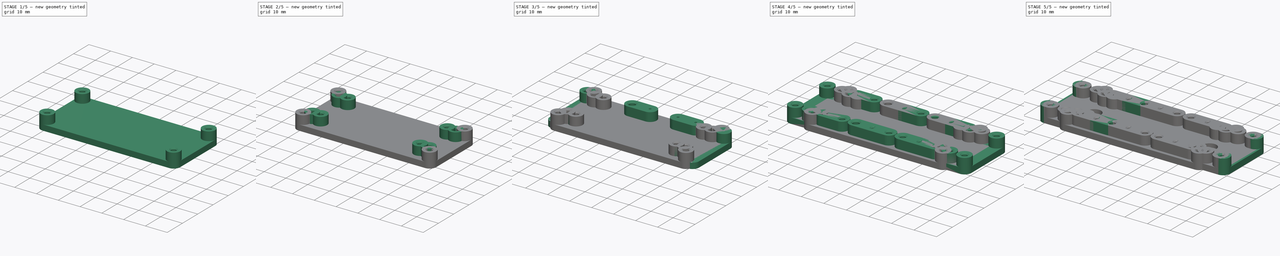
[diagram: build sequence overview — one tinted view per stage of 5, left to right]
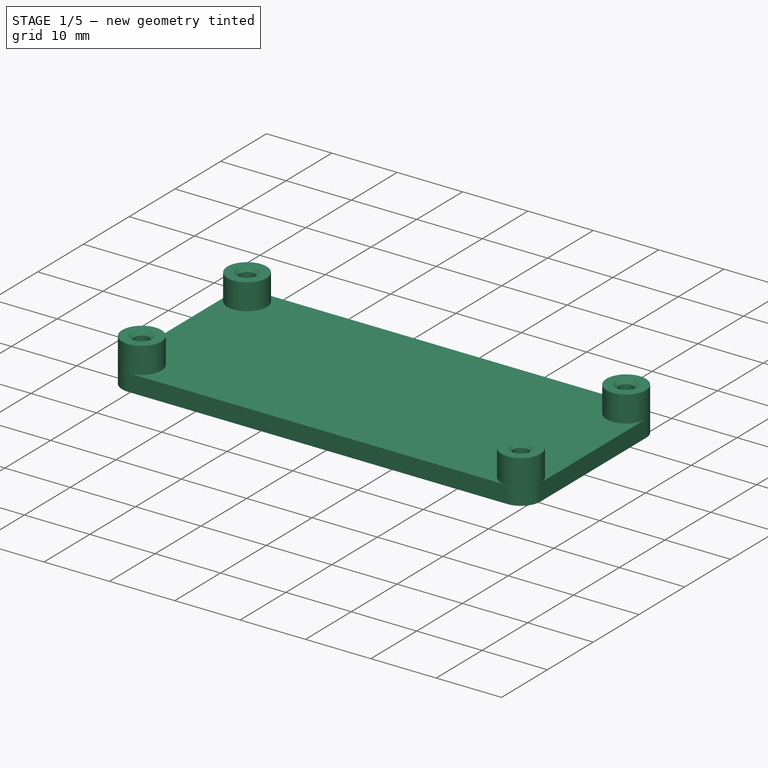
[diagram: stage 1 of 5 — iso view after this stage's code; geometry added in this stage tinted green]
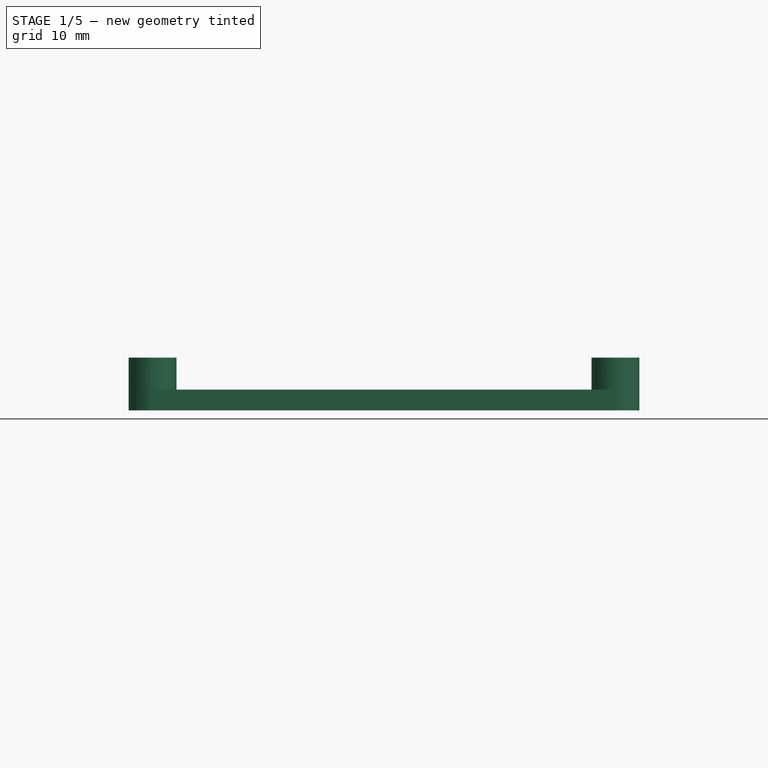
[diagram: stage 1 of 5 — front view after this stage's code; geometry added in this stage tinted green]
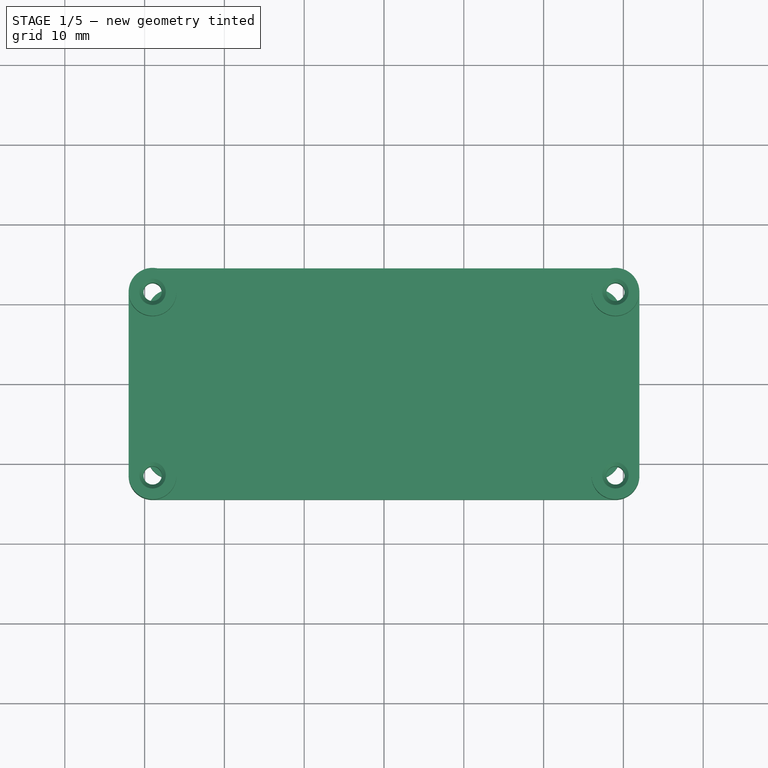
[diagram: stage 1 of 5 — top view after this stage's code; geometry added in this stage tinted green]
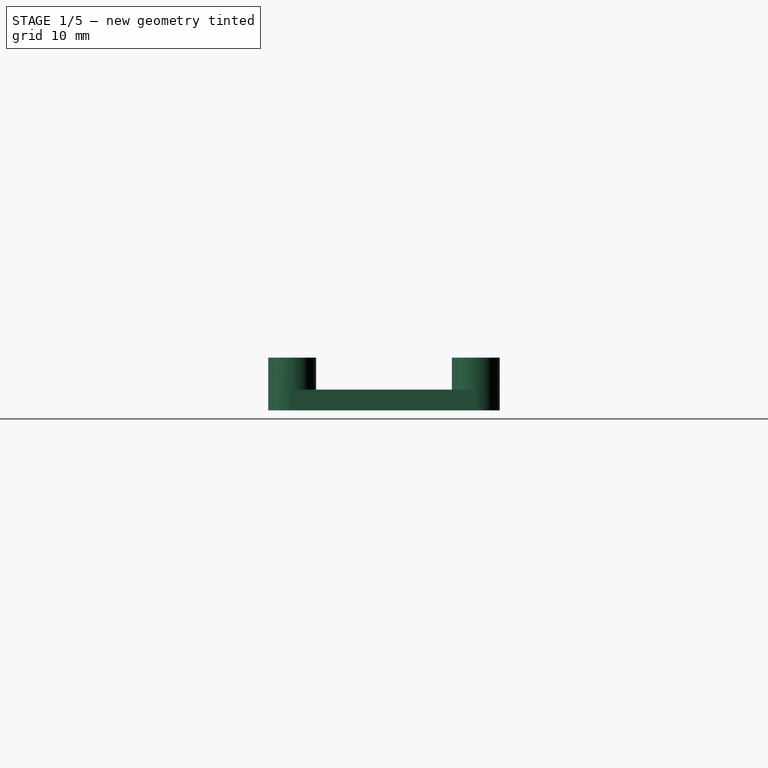
[diagram: stage 1 of 5 — right view after this stage's code; geometry added in this stage tinted green]
FCSTD DOCUMENT  (FreeCAD 0.20R29603 (Git))
Label: qwiicplate
License: All rights reserved
LicenseURL: http://en.wikipedia.org/wiki/All_rights_reserved
objects: Sketcher::SketchObject×26, PartDesign::Hole×13, PartDesign::Pad×12, PartDesign::Mirrored×10, PartDesign::Body×6, PartDesign::MultiTransform×4, Spreadsheet::Sheet×1, PartDesign::Pocket×1
note: 98 computed .brp shape members not serialized (recipe doc carries the construction recipe); baked Part::Feature solids carry a one-line shape summary decoded from their .brp

FEATURE [PartDesign::Body] Body003  label="feather"
  Group = -> [Sketch013,Pad006,Sketch014,Pad007,Sketch015,Hole007,Sketch016,Hole008,Sketch017,Pocket,Mirrored005]
  Origin = -> Origin003
  Tip = -> Mirrored005
FEATURE [Sketcher::SketchObject] Sketch018
  FullyConstrained = true
  MapMode = 5
  Support = -> [XY_Plane004]
  expr: Constraints[53] = <<param>>.clearance
  sketch-geometry (24):
    g0: LineSegment StartX=-29.21 StartY=11.43 StartZ=0 EndX=-29.21 EndY=-11.43 EndZ=0
    g1: LineSegment StartX=-29.21 StartY=-11.43 StartZ=0 EndX=29.21 EndY=-11.43 EndZ=0
    g2: LineSegment StartX=29.21 StartY=-11.43 StartZ=0 EndX=29.21 EndY=11.43 EndZ=0
    g3: LineSegment StartX=29.21 StartY=11.43 StartZ=0 EndX=-29.21 EndY=11.43 EndZ=0
    g4: GeomPoint X=0 Y=0 Z=0
    g5: LineSegment StartX=-26.67 StartY=8.89 StartZ=0 EndX=-26.67 EndY=-8.89 EndZ=0
    g6: LineSegment StartX=-26.67 StartY=-8.89 StartZ=0 EndX=26.67 EndY=-8.89 EndZ=0
    g7: LineSegment StartX=26.67 StartY=-8.89 StartZ=0 EndX=26.67 EndY=8.89 EndZ=0
    g8: LineSegment StartX=26.67 StartY=8.89 StartZ=0 EndX=-26.67 EndY=8.89 EndZ=0
    g9: GeomPoint X=0 Y=0 Z=0
    g10: Circle CenterX=-26.67 CenterY=8.89 CenterZ=0 NormalX=0 NormalY=0 NormalZ=1 AngleXU=0 Radius=0.5
    g11: Circle CenterX=-26.67 CenterY=-8.89 CenterZ=0 NormalX=0 NormalY=0 NormalZ=1 AngleXU=0 Radius=0.5
    g12: Circle CenterX=26.67 CenterY=-8.89 CenterZ=0 NormalX=0 NormalY=0 NormalZ=1 AngleXU=0 Radius=0.5
    g13: Circle CenterX=26.67 CenterY=8.89 CenterZ=0 NormalX=0 NormalY=0 NormalZ=1 AngleXU=0 Radius=0.5
    g14: ArcOfCircle CenterX=-26.67 CenterY=8.89 CenterZ=0 NormalX=0 NormalY=0 NormalZ=1 AngleXU=0 Radius=3 StartAngle=1.5708 EndAngle=3.14159
    g15: LineSegment StartX=-26.67 StartY=11.89 StartZ=0 EndX=26.67 EndY=11.89 EndZ=0
    g16: ArcOfCircle CenterX=26.67 CenterY=8.89 CenterZ=0 NormalX=0 NormalY=0 NormalZ=1 AngleXU=0 Radius=3 StartAngle=2.18e-14 EndAngle=1.5708
    g17: LineSegment StartX=29.67 StartY=8.89 StartZ=0 EndX=29.67 EndY=-8.89 EndZ=0
    g18: ArcOfCircle CenterX=26.67 CenterY=-8.89 CenterZ=0 NormalX=0 NormalY=0 NormalZ=1 AngleXU=0 Radius=3 StartAngle=4.71239 EndAngle=6.28319
    g19: LineSegment StartX=26.67 StartY=-11.89 StartZ=0 EndX=-26.67 EndY=-11.89 EndZ=0
    g20: ArcOfCircle CenterX=-26.67 CenterY=-8.89 CenterZ=0 NormalX=0 NormalY=0 NormalZ=1 AngleXU=0 Radius=3 StartAngle=3.14159 EndAngle=4.71239
    g21: LineSegment StartX=-29.67 StartY=-8.89 StartZ=0 EndX=-29.67 EndY=8.89 EndZ=0
    g22: GeomPoint X=-29.67 Y=11.89 Z=0
    g23: GeomPoint X=29.67 Y=-11.89 Z=0
  constraints (54):
    c: Coincident(g0,g1)
    c: Coincident(g1,g2)
    c: Coincident(g2,g3)
    c: Coincident(g3,g0)
    c: Horizontal(g1)
    c: Horizontal(g3)
    c: Vertical(g0)
    c: Vertical(g2)
    c: Symmetric(g1,g0,g4)
    c: Coincident(g4,g-1)
    c: DistanceY(g0,g0) = 22.86
    c: DistanceX(g3,g3) = 58.42
    c: Coincident(g5,g6)
    c: Coincident(g6,g7)
    c: Coincident(g7,g8)
    c: Coincident(g8,g5)
    c: Horizontal(g6)
    c: Horizontal(g8)
    c: Vertical(g5)
    c: Vertical(g7)
    c: Symmetric(g6,g5,g9)
    c: Coincident(g9,g4)
    c: DistanceY(g5,g5) = 17.78
    c: DistanceX(g8,g8) = 53.34
    c: Coincident(g10,g5)
    c: Coincident(g11,g5)
    c: Coincident(g12,g6)
    c: Coincident(g13,g7)
    c: Equal(g10,g11)
    c: Equal(g11,g12)
    c: Equal(g12,g13)
    c: Diameter(g10) = 1
    c: Tangent(g14,g15) = 1.5708
    c: Tangent(g15,g16) = 1.5708
    c: Tangent(g16,g17) = 1.5708
    c: Tangent(g17,g18) = 1.5708
    c: Tangent(g18,g19) = 1.5708
    c: Tangent(g19,g20) = 1.5708
    c: Tangent(g20,g21) = 1.5708
    c: Tangent(g21,g14) = 1.5708
    c: Horizontal(g15)
    c: Horizontal(g19)
    c: Vertical(g17)
    c: Vertical(g21)
    c: Equal(g14,g16)
    c: Equal(g16,g18)
    c: Equal(g18,g20)
    c: PointOnObject(g22,g15)
    c: PointOnObject(g22,g21)
    c: PointOnObject(g23,g17)
    c: PointOnObject(g23,g19)
    c: Coincident(g10,g14)
    c: Coincident(g18,g12)
    c: Radius(g14) = 3
FEATURE [PartDesign::Pad] Pad008
  Direction = (0,0,1)
  Length = 2.6
  Length2 = 10
  Profile = -> Sketch018
  ReferenceAxis = -> Sketch018 [N_Axis]
  Refine = true
  Type = 0
  expr: Length = <<param>>.thickness
FEATURE [PartDesign::Body] Body004  label="thingplus"
  Group = -> [Sketch018,Pad008,Sketch019,Pad009,Sketch020,Hole009,MultiTransform002,Mirrored006,Mirrored007,Sketch021,Hole010]
  Origin = -> Origin004
  Tip = -> Hole010
FEATURE [Sketcher::SketchObject] Sketch022
  FullyConstrained = true
  MapMode = 5
  Support = -> [XY_Plane005]
  expr: Constraints[47] = <<param>>.clearance
  sketch-geometry (21):
    g0: LineSegment StartX=-29 StartY=11.5 StartZ=0 EndX=-29 EndY=-11.5 EndZ=0
    g1: LineSegment StartX=-29 StartY=-11.5 StartZ=0 EndX=29 EndY=-11.5 EndZ=0
    g2: LineSegment StartX=29 StartY=-11.5 StartZ=0 EndX=29 EndY=11.5 EndZ=0
    g3: LineSegment StartX=29 StartY=11.5 StartZ=0 EndX=-29 EndY=11.5 EndZ=0
    g4: GeomPoint X=0 Y=0 Z=0
    g5: LineSegment StartX=-32.5 StartY=15.25 StartZ=0 EndX=-32.5 EndY=-15.25 EndZ=0
    g6: LineSegment StartX=-32.5 StartY=-15.25 StartZ=0 EndX=32.5 EndY=-15.25 EndZ=0
    g7: LineSegment StartX=32.5 StartY=-15.25 StartZ=0 EndX=32.5 EndY=15.25 EndZ=0
    g8: LineSegment StartX=32.5 StartY=15.25 StartZ=0 EndX=-32.5 EndY=15.25 EndZ=0
    g9: GeomPoint X=0 Y=0 Z=0
    g10: Circle CenterX=-29 CenterY=11.5 CenterZ=0 NormalX=0 NormalY=0 NormalZ=1 AngleXU=0 Radius=0.5
    g11: ArcOfCircle CenterX=-29 CenterY=11.5 CenterZ=0 NormalX=0 NormalY=0 NormalZ=1 AngleXU=0 Radius=3 StartAngle=1.5708 EndAngle=3.14159
    g12: LineSegment StartX=-29 StartY=14.5 StartZ=0 EndX=29 EndY=14.5 EndZ=0
    g13: ArcOfCircle CenterX=29 CenterY=11.5 CenterZ=0 NormalX=0 NormalY=0 NormalZ=1 AngleXU=0 Radius=3 StartAngle=1.986e-13 EndAngle=1.5708
    g14: LineSegment StartX=32 StartY=11.5 StartZ=0 EndX=32 EndY=-11.5 EndZ=0
    g15: ArcOfCircle CenterX=29 CenterY=-11.5 CenterZ=0 NormalX=0 NormalY=0 NormalZ=1 AngleXU=0 Radius=3 StartAngle=4.71239 EndAngle=6.28319
    g16: LineSegment StartX=29 StartY=-14.5 StartZ=0 EndX=-29 EndY=-14.5 EndZ=0
    g17: ArcOfCircle CenterX=-29 CenterY=-11.5 CenterZ=0 NormalX=0 NormalY=0 NormalZ=1 AngleXU=0 Radius=3 StartAngle=3.14159 EndAngle=4.71239
    g18: LineSegment StartX=-32 StartY=-11.5 StartZ=0 EndX=-32 EndY=11.5 EndZ=0
    g19: GeomPoint X=-32 Y=14.5 Z=0
    g20: GeomPoint X=32 Y=-14.5 Z=0
  constraints (48):
    c: Coincident(g0,g1)
    c: Coincident(g1,g2)
    c: Coincident(g2,g3)
    c: Coincident(g3,g0)
    c: Horizontal(g1)
    c: Horizontal(g3)
    c: Vertical(g0)
    c: Vertical(g2)
    c: Symmetric(g1,g0,g4)
    c: Coincident(g4,g-1)
    c: Coincident(g5,g6)
    c: Coincident(g6,g7)
    c: Coincident(g7,g8)
    c: Coincident(g8,g5)
    c: Horizontal(g6)
    c: Horizontal(g8)
    c: Vertical(g5)
    c: Vertical(g7)
    c: Symmetric(g6,g5,g9)
    c: Coincident(g9,g4)
    c: DistanceX(g8,g8) = 65
    c: DistanceX(g3,g3) = 58
    c: DistanceY(g0,g0) = 23
    c: DistanceY(g5,g5) = 30.5
    c: Coincident(g10,g0)
    c: Diameter(g10) = 1
    c: Tangent(g11,g12) = 1.5708
    c: Tangent(g12,g13) = 1.5708
    c: Tangent(g13,g14) = 1.5708
    c: Tangent(g14,g15) = 1.5708
    c: Tangent(g15,g16) = 1.5708
    c: Tangent(g16,g17) = 1.5708
    c: Tangent(g17,g18) = 1.5708
    c: Tangent(g18,g11) = 1.5708
    c: Horizontal(g12)
    c: Horizontal(g16)
    c: Vertical(g14)
    c: Vertical(g18)
    c: Equal(g11,g13)
    c: Equal(g13,g15)
    c: Equal(g15,g17)
    c: PointOnObject(g19,g12)
    c: PointOnObject(g19,g18)
    c: PointOnObject(g20,g14)
    c: PointOnObject(g20,g16)
    c: Coincident(g15,g1)
    c: Coincident(g11,g10)
    c: Radius(g11) = 3
FEATURE [PartDesign::Pad] Pad010
  Direction = (0,0,1)
  Length = 2.6
  Length2 = 10
  Profile = -> Sketch022
  ReferenceAxis = -> Sketch022 [N_Axis]
  Refine = true
  Type = 0
  expr: Length = <<param>>.thickness
FEATURE [Sketcher::SketchObject] Sketch023
  ExternalGeometry = -> [Pad010]
  FullyConstrained = true
  MapMode = 5
  Placement = pos=(0,0,2.6) rot=(0,0,1;0rad)
  Support = -> [Pad010]
  sketch-geometry (2):
    g0: Circle CenterX=-29 CenterY=11.5 CenterZ=0 NormalX=0 NormalY=0 NormalZ=1 AngleXU=0 Radius=3
    g1: Circle CenterX=-29 CenterY=11.5 CenterZ=0 NormalX=0 NormalY=0 NormalZ=1 AngleXU=0 Radius=0.5
  constraints (4):
    c: Coincident(g0,g-4)
    c: PointOnObject(g-4,g0)
    c: Coincident(g1,g0)
    c: Equal(g1,g-3)
FEATURE [PartDesign::Pad] Pad011
  BaseFeature = -> Pad010
  Direction = (0,0,1)
  Length = 4
  Length2 = 10
  Profile = -> Sketch023
  ReferenceAxis = -> Sketch023 [N_Axis]
  Refine = true
  Type = 0
  expr: Length = <<param>>.standoff
FEATURE [Sketcher::SketchObject] Sketch024
  ExternalGeometry = -> [Pad011]
  FullyConstrained = true
  MapMode = 5
  Placement = pos=(0,0,6.6) rot=(0,0,1;0rad)
  Support = -> [Pad011]
  sketch-geometry (1):
    g0: Circle CenterX=-29 CenterY=11.5 CenterZ=0 NormalX=0 NormalY=0 NormalZ=1 AngleXU=0 Radius=0.5
  constraints (2):
    c: Coincident(g0,g-3)
    c: Equal(g0,g-3)
FEATURE [PartDesign::Hole] Hole011
  BaseFeature = -> Pad011
  CustomThreadClearance = 0
  Depth = 142.558
  DepthType = 1
  Diameter = 2.3
  DrillForDepth = false
  DrillPoint = 1
  DrillPointAngle = 118
  HoleCutCountersinkAngle = 90
  HoleCutCustomValues = false
  HoleCutDepth = 0
  HoleCutDiameter = 3.3
  HoleCutType = 2
  ModelThread = false
  Profile = -> Sketch024
  Refine = true
  Tapered = false
  TaperedAngle = 90
  ThreadClass = 0
  ThreadDepth = 142.558
  ThreadDepthType = 0
  ThreadDirection = 0
  ThreadFit = 0
  ThreadSize = 0
  ThreadType = 0
  Threaded = false
  UseCustomThreadClearance = false
  expr: Diameter = <<param>>.m2p5_dia
  expr: HoleCutDiameter = <<param>>.m2p5_cs
FEATURE [PartDesign::Mirrored] Mirrored008
  MirrorPlane = -> Sketch023 [V_Axis]
  Refine = true
FEATURE [PartDesign::Mirrored] Mirrored009
  MirrorPlane = -> Sketch023 [H_Axis]
  Refine = true
FEATURE [PartDesign::MultiTransform] MultiTransform003
  BaseFeature = -> Hole011
  Originals = -> [Pad011,Hole011]
  Refine = true
  Transformations = -> [Mirrored008,Mirrored009]
FEATURE [Sketcher::SketchObject] Sketch025
  FullyConstrained = true
  MapMode = 5
  Placement = pos=(0,0,2.6) rot=(0,0,1;0rad)
  Support = -> [MultiTransform003]
  sketch-geometry (2):
    g0: Circle CenterX=-25.5 CenterY=0 CenterZ=0 NormalX=0 NormalY=0 NormalZ=1 AngleXU=0 Radius=1.5
    g1: Circle CenterX=25.5 CenterY=0 CenterZ=0 NormalX=0 NormalY=0 NormalZ=1 AngleXU=0 Radius=1.5
  constraints (5):
    c: PointOnObject(g0,g-1)
    c: Equal(g0,g1)
    c: Symmetric(g0,g1,g-2)
    c: DistanceX(g0,g1) = 51
    c: Diameter(g0) = 3
FEATURE [PartDesign::Hole] Hole012
  BaseFeature = -> MultiTransform003
  CustomThreadClearance = 0
  Depth = 142.558
  DepthType = 1
  Diameter = 3.2
  DrillForDepth = false
  DrillPoint = 1
  DrillPointAngle = 118
  HoleCutCountersinkAngle = 90
  HoleCutCustomValues = false
  HoleCutDepth = 1.7
  HoleCutDiameter = 6
  HoleCutType = 9
  ModelThread = false
  Profile = -> Sketch025
  Refine = true
  Tapered = false
  TaperedAngle = 90
  ThreadClass = 0
  ThreadDepth = 142.558
  ThreadDepthType = 0
  ThreadDirection = 0
  ThreadFit = 1
  ThreadSize = 9
  ThreadType = 1
  Threaded = false
  UseCustomThreadClearance = false
FEATURE [PartDesign::Body] Body005  label="pizero"
  Group = -> [Sketch022,Pad010,Sketch023,Pad011,Sketch024,Hole011,MultiTransform003,Mirrored008,Mirrored009,Sketch025,Hole012]
  Origin = -> Origin005
  Tip = -> Hole012
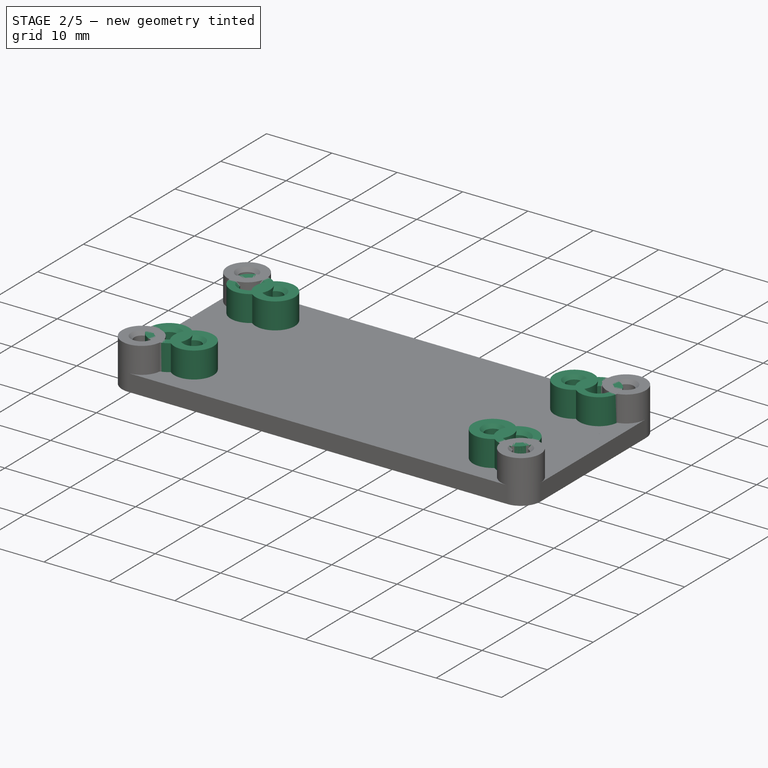
[diagram: stage 2 of 5 — iso view after this stage's code; geometry added in this stage tinted green]
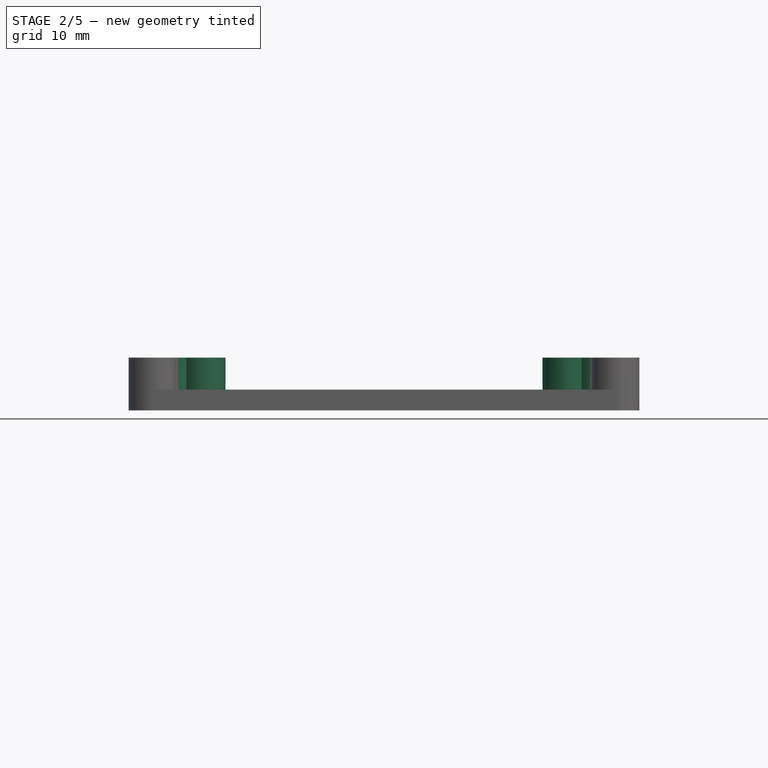
[diagram: stage 2 of 5 — front view after this stage's code; geometry added in this stage tinted green]
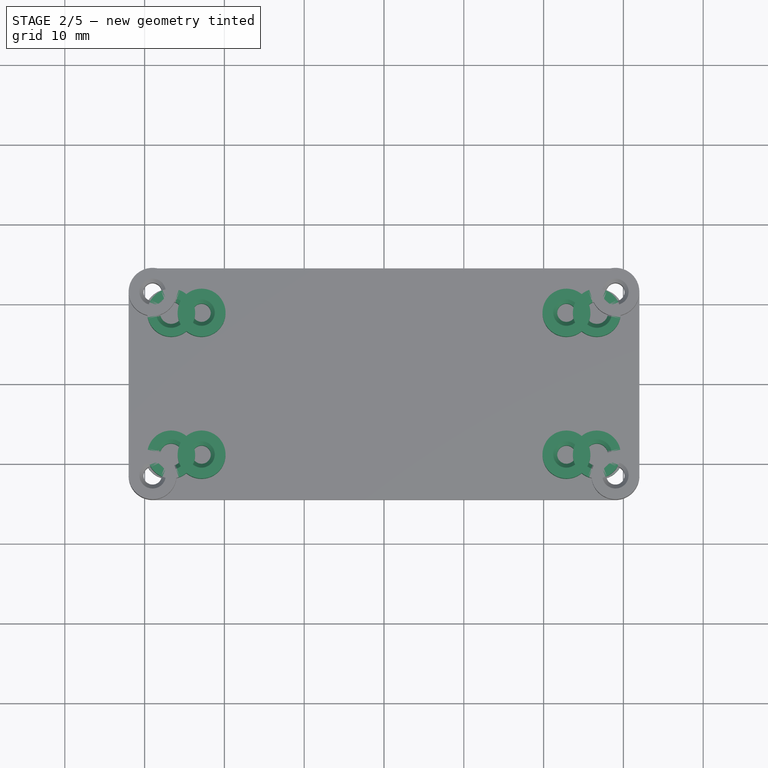
[diagram: stage 2 of 5 — top view after this stage's code; geometry added in this stage tinted green]
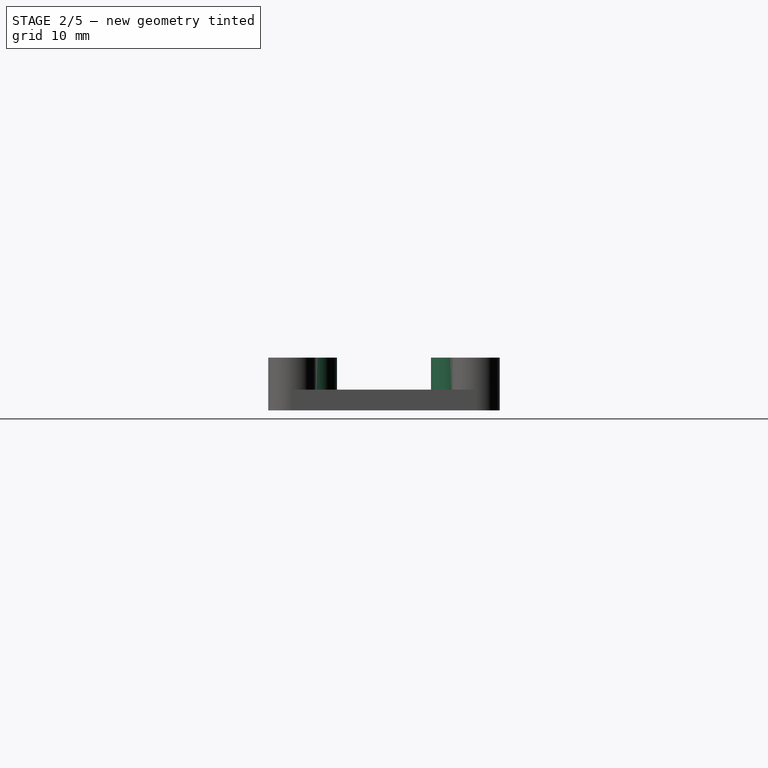
[diagram: stage 2 of 5 — right view after this stage's code; geometry added in this stage tinted green]
FEATURE [PartDesign::Body] Body002  label="1s2a"
  Group = -> [Sketch008,Pad004,Sketch009,Pad005,Sketch010,Hole004,Sketch011,Hole005,Mirrored004,Sketch012,Hole006]
  Origin = -> Origin002
  Tip = -> Hole006
FEATURE [Sketcher::SketchObject] Sketch013
  FullyConstrained = true
  MapMode = 5
  Support = -> [XY_Plane003]
  expr: Constraints[45] = <<param>>.clearance
  sketch-geometry (24):
    g0: LineSegment StartX=-25.4 StartY=-11.43 StartZ=0 EndX=-25.4 EndY=11.43 EndZ=0
    g1: LineSegment StartX=-25.4 StartY=11.43 StartZ=0 EndX=25.4 EndY=11.43 EndZ=0
    g2: LineSegment StartX=25.4 StartY=11.43 StartZ=0 EndX=25.4 EndY=-11.43 EndZ=0
    g3: LineSegment StartX=25.4 StartY=-11.43 StartZ=0 EndX=-25.4 EndY=-11.43 EndZ=0
    g4: GeomPoint X=0 Y=0 Z=0
    g5: LineSegment StartX=-22.86 StartY=-8.89 StartZ=0 EndX=-22.86 EndY=8.89 EndZ=0
    g6: LineSegment StartX=-22.86 StartY=8.89 StartZ=0 EndX=22.86 EndY=8.89 EndZ=0
    g7: LineSegment StartX=22.86 StartY=8.89 StartZ=0 EndX=22.86 EndY=-8.89 EndZ=0
    g8: LineSegment StartX=22.86 StartY=-8.89 StartZ=0 EndX=-22.86 EndY=-8.89 EndZ=0
    g9: GeomPoint X=0 Y=0 Z=0
    g10: Circle CenterX=-22.86 CenterY=8.89 CenterZ=0 NormalX=0 NormalY=0 NormalZ=1 AngleXU=0 Radius=0.5
    g11: Circle CenterX=22.86 CenterY=8.89 CenterZ=0 NormalX=0 NormalY=0 NormalZ=1 AngleXU=0 Radius=0.5
    g12: Circle CenterX=22.86 CenterY=-8.89 CenterZ=0 NormalX=0 NormalY=0 NormalZ=1 AngleXU=0 Radius=0.5
    g13: Circle CenterX=-22.86 CenterY=-8.89 CenterZ=0 NormalX=0 NormalY=0 NormalZ=1 AngleXU=0 Radius=0.5
    g14: ArcOfCircle CenterX=-27 CenterY=8.89 CenterZ=0 NormalX=0 NormalY=0 NormalZ=1 AngleXU=0 Radius=3 StartAngle=1.5708 EndAngle=3.14159
    g15: LineSegment StartX=-27 StartY=11.89 StartZ=0 EndX=27 EndY=11.89 EndZ=0
    g16: ArcOfCircle CenterX=27 CenterY=8.89 CenterZ=0 NormalX=0 NormalY=0 NormalZ=1 AngleXU=0 Radius=3 StartAngle=0 EndAngle=1.5708
    g17: LineSegment StartX=30 StartY=8.89 StartZ=0 EndX=30 EndY=-8.89 EndZ=0
    g18: ArcOfCircle CenterX=27 CenterY=-8.89 CenterZ=0 NormalX=0 NormalY=0 NormalZ=1 AngleXU=0 Radius=3 StartAngle=4.71239 EndAngle=6.28319
    g19: LineSegment StartX=27 StartY=-11.89 StartZ=0 EndX=-27 EndY=-11.89 EndZ=0
    g20: ArcOfCircle CenterX=-27 CenterY=-8.89 CenterZ=0 NormalX=0 NormalY=0 NormalZ=1 AngleXU=0 Radius=3 StartAngle=3.14159 EndAngle=4.71239
    g21: LineSegment StartX=-30 StartY=-8.89 StartZ=0 EndX=-30 EndY=8.89 EndZ=0
    g22: GeomPoint X=-30 Y=11.89 Z=0
    g23: GeomPoint X=30 Y=-11.89 Z=0
  constraints (54):
    c: Coincident(g0,g1)
    c: Coincident(g1,g2)
    c: Coincident(g2,g3)
    c: Coincident(g3,g0)
    c: Horizontal(g1)
    c: Horizontal(g3)
    c: Vertical(g0)
    c: Vertical(g2)
    c: Symmetric(g1,g0,g4)
    c: Coincident(g4,g-1)
    c: DistanceY(g0,g0) = 22.86
    c: DistanceX(g1,g1) = 50.8
    c: Coincident(g5,g6)
    c: Coincident(g6,g7)
    c: Coincident(g7,g8)
    c: Coincident(g8,g5)
    c: Horizontal(g6)
    c: Horizontal(g8)
    c: Vertical(g5)
    c: Vertical(g7)
    c: Symmetric(g6,g5,g9)
    c: Coincident(g9,g4)
    c: DistanceX(g6,g6) = 45.72
    c: DistanceY(g5,g5) = 17.78
    c: Coincident(g10,g5)
    c: Coincident(g11,g6)
    c: Coincident(g12,g7)
    c: Coincident(g13,g5)
    c: Tangent(g14,g15) = 1.5708
    c: Tangent(g15,g16) = 1.5708
    c: Tangent(g16,g17) = 1.5708
    c: Tangent(g17,g18) = 1.5708
    c: Tangent(g18,g19) = 1.5708
    c: Tangent(g19,g20) = 1.5708
    c: Tangent(g20,g21) = 1.5708
    c: Tangent(g21,g14) = 1.5708
    c: Horizontal(g15)
    c: Horizontal(g19)
    c: Vertical(g17)
    c: Vertical(g21)
    c: Equal(g16,g18)
    c: PointOnObject(g22,g15)
    c: PointOnObject(g22,g21)
    c: PointOnObject(g23,g17)
    c: PointOnObject(g23,g19)
    c: Radius(g14) = 3
    c: Diameter(g10) = 1
    c: Equal(g10,g11)
    c: Equal(g11,g12)
    c: Equal(g12,g13)
    c: Horizontal(g14,g10)
    c: Symmetric(g14,g16,g-2)
    c: Symmetric(g14,g20,g-1)
    c: DistanceX(g14,g16) = 60
FEATURE [PartDesign::Pad] Pad006
  Direction = (0,0,1)
  Length = 2.6
  Length2 = 10
  Profile = -> Sketch013
  ReferenceAxis = -> Sketch013 [N_Axis]
  Refine = true
  Type = 0
  expr: Length = <<param>>.thickness
FEATURE [Sketcher::SketchObject] Sketch014
  ExternalGeometry = -> [Pad006]
  FullyConstrained = true
  MapMode = 5
  Placement = pos=(0,0,2.6) rot=(0,0,1;0rad)
  Support = -> [Pad006]
  sketch-geometry (8):
    g0: Circle CenterX=-22.86 CenterY=8.89 CenterZ=0 NormalX=0 NormalY=0 NormalZ=1 AngleXU=0 Radius=3
    g1: Circle CenterX=22.86 CenterY=8.89 CenterZ=0 NormalX=0 NormalY=0 NormalZ=1 AngleXU=0 Radius=3
    g2: Circle CenterX=-22.86 CenterY=-8.89 CenterZ=0 NormalX=0 NormalY=0 NormalZ=1 AngleXU=0 Radius=3
    g3: Circle CenterX=22.86 CenterY=-8.89 CenterZ=0 NormalX=0 NormalY=0 NormalZ=1 AngleXU=0 Radius=3
    g4: Circle CenterX=-22.86 CenterY=8.89 CenterZ=0 NormalX=0 NormalY=0 NormalZ=1 AngleXU=0 Radius=0.5
    g5: Circle CenterX=22.86 CenterY=8.89 CenterZ=0 NormalX=0 NormalY=0 NormalZ=1 AngleXU=0 Radius=0.5
    g6: Circle CenterX=22.86 CenterY=-8.89 CenterZ=0 NormalX=0 NormalY=0 NormalZ=1 AngleXU=0 Radius=0.5
    g7: Circle CenterX=-22.86 CenterY=-8.89 CenterZ=0 NormalX=0 NormalY=0 NormalZ=1 AngleXU=0 Radius=0.5
  constraints (16):
    c: Coincident(g0,g-8)
    c: Coincident(g1,g-9)
    c: Coincident(g2,g-7)
    c: Coincident(g3,g-10)
    c: Coincident(g4,g0)
    c: Coincident(g5,g1)
    c: Coincident(g6,g3)
    c: Coincident(g7,g2)
    c: Equal(g4,g-8)
    c: Equal(g5,g-9)
    c: Equal(g6,g-10)
    c: Equal(g7,g-7)
    c: Tangent(g2,g-12)
    c: Tangent(g0,g-11)
    c: Tangent(g1,g-11)
    c: Tangent(g3,g-12)
FEATURE [PartDesign::Pad] Pad007
  BaseFeature = -> Pad006
  Direction = (0,0,1)
  Length = 4
  Length2 = 10
  Profile = -> Sketch014
  ReferenceAxis = -> Sketch014 [N_Axis]
  Refine = true
  Type = 0
  expr: Length = <<param>>.standoff
FEATURE [Sketcher::SketchObject] Sketch015
  ExternalGeometry = -> [Pad007]
  FullyConstrained = true
  MapMode = 5
  Placement = pos=(0,0,6.6) rot=(0,0,1;0rad)
  Support = -> [Pad007]
  sketch-geometry (4):
    g0: Circle CenterX=-22.86 CenterY=8.89 CenterZ=0 NormalX=0 NormalY=0 NormalZ=1 AngleXU=0 Radius=0.5
    g1: Circle CenterX=22.86 CenterY=8.89 CenterZ=0 NormalX=0 NormalY=0 NormalZ=1 AngleXU=0 Radius=0.5
    g2: Circle CenterX=22.86 CenterY=-8.89 CenterZ=0 NormalX=0 NormalY=0 NormalZ=1 AngleXU=0 Radius=0.5
    g3: Circle CenterX=-22.86 CenterY=-8.89 CenterZ=0 NormalX=0 NormalY=0 NormalZ=1 AngleXU=0 Radius=0.5
  constraints (8):
    c: Coincident(g0,g-3)
    c: Coincident(g1,g-4)
    c: Coincident(g2,g-6)
    c: Coincident(g3,g-5)
    c: Equal(g0,g-3)
    c: Equal(g1,g-4)
    c: Equal(g2,g-6)
    c: Equal(g3,g-5)
FEATURE [PartDesign::Hole] Hole007
  BaseFeature = -> Pad007
  CustomThreadClearance = 0
  Depth = 117.09
  DepthType = 1
  Diameter = 2.3
  DrillForDepth = false
  DrillPoint = 1
  DrillPointAngle = 118
  HoleCutCountersinkAngle = 90
  HoleCutCustomValues = false
  HoleCutDepth = 0
  HoleCutDiameter = 3.3
  HoleCutType = 2
  ModelThread = false
  Profile = -> Sketch015
  Refine = true
  Tapered = false
  TaperedAngle = 90
  ThreadClass = 0
  ThreadDepth = 117.09
  ThreadDepthType = 0
  ThreadDirection = 0
  ThreadFit = 0
  ThreadSize = 0
  ThreadType = 0
  Threaded = false
  UseCustomThreadClearance = false
  expr: Diameter = <<param>>.m2p5_dia
  expr: HoleCutDiameter = <<param>>.m2p5_cs
FEATURE [Sketcher::SketchObject] Sketch019
  ExternalGeometry = -> [Pad008]
  FullyConstrained = true
  MapMode = 5
  Placement = pos=(0,0,2.6) rot=(0,0,1;0rad)
  Support = -> [Pad008]
  sketch-geometry (2):
    g0: Circle CenterX=-26.67 CenterY=8.89 CenterZ=0 NormalX=0 NormalY=0 NormalZ=1 AngleXU=0 Radius=3
    g1: Circle CenterX=-26.67 CenterY=8.89 CenterZ=0 NormalX=0 NormalY=0 NormalZ=1 AngleXU=0 Radius=0.5
  constraints (4):
    c: Coincident(g0,g-4)
    c: PointOnObject(g-4,g0)
    c: Coincident(g1,g0)
    c: Equal(g-3,g1)
FEATURE [PartDesign::Pad] Pad009
  BaseFeature = -> Pad008
  Direction = (0,0,1)
  Length = 4
  Length2 = 10
  Profile = -> Sketch019
  ReferenceAxis = -> Sketch019 [N_Axis]
  Refine = true
  Type = 0
  expr: Length = <<param>>.standoff
FEATURE [Sketcher::SketchObject] Sketch020
  ExternalGeometry = -> [Pad009]
  FullyConstrained = true
  MapMode = 5
  Placement = pos=(0,0,6.6) rot=(0,0,1;0rad)
  Support = -> [Pad009]
  sketch-geometry (1):
    g0: Circle CenterX=-26.67 CenterY=8.89 CenterZ=0 NormalX=0 NormalY=0 NormalZ=1 AngleXU=0 Radius=0.5
  constraints (2):
    c: Coincident(g0,g-3)
    c: Equal(g0,g-3)
FEATURE [PartDesign::Hole] Hole009
  BaseFeature = -> Pad009
  CustomThreadClearance = 0
  Depth = 129.82
  DepthType = 1
  Diameter = 2.8
  DrillForDepth = false
  DrillPoint = 1
  DrillPointAngle = 118
  HoleCutCountersinkAngle = 90
  HoleCutCustomValues = false
  HoleCutDepth = 0
  HoleCutDiameter = 3.8
  HoleCutType = 2
  ModelThread = false
  Profile = -> Sketch020
  Refine = true
  Tapered = false
  TaperedAngle = 90
  ThreadClass = 0
  ThreadDepth = 129.82
  ThreadDepthType = 0
  ThreadDirection = 0
  ThreadFit = 0
  ThreadSize = 0
  ThreadType = 0
  Threaded = false
  UseCustomThreadClearance = false
  expr: Diameter = <<param>>.m3_dia
  expr: HoleCutDiameter = <<param>>.m3_cs
FEATURE [PartDesign::Mirrored] Mirrored006
  MirrorPlane = -> Sketch019 [V_Axis]
  Refine = true
FEATURE [PartDesign::Mirrored] Mirrored007
  MirrorPlane = -> Sketch019 [H_Axis]
  Refine = true
FEATURE [PartDesign::MultiTransform] MultiTransform002
  BaseFeature = -> Hole009
  Originals = -> [Pad009,Hole009]
  Refine = true
  Transformations = -> [Mirrored006,Mirrored007]
FEATURE [Sketcher::SketchObject] Sketch021
  FullyConstrained = true
  MapMode = 5
  Placement = pos=(0,0,2.6) rot=(0,0,1;0rad)
  Support = -> [MultiTransform002]
  sketch-geometry (2):
    g0: Circle CenterX=-25.5 CenterY=0 CenterZ=0 NormalX=0 NormalY=0 NormalZ=1 AngleXU=0 Radius=1.5
    g1: Circle CenterX=25.5 CenterY=0 CenterZ=0 NormalX=0 NormalY=0 NormalZ=1 AngleXU=0 Radius=1.5
  constraints (5):
    c: PointOnObject(g0,g-1)
    c: Symmetric(g1,g0,g-2)
    c: Equal(g1,g0)
    c: Diameter(g0) = 3
    c: DistanceX(g0,g1) = 51
FEATURE [PartDesign::Hole] Hole010
  BaseFeature = -> MultiTransform002
  CustomThreadClearance = 0
  Depth = 129.82
  DepthType = 1
  Diameter = 3.2
  DrillForDepth = false
  DrillPoint = 1
  DrillPointAngle = 118
  HoleCutCountersinkAngle = 90
  HoleCutCustomValues = false
  HoleCutDepth = 1.7
  HoleCutDiameter = 6
  HoleCutType = 9
  ModelThread = false
  Profile = -> Sketch021
  Refine = true
  Tapered = false
  TaperedAngle = 90
  ThreadClass = 0
  ThreadDepth = 129.82
  ThreadDepthType = 0
  ThreadDirection = 0
  ThreadFit = 1
  ThreadSize = 9
  ThreadType = 1
  Threaded = false
  UseCustomThreadClearance = false
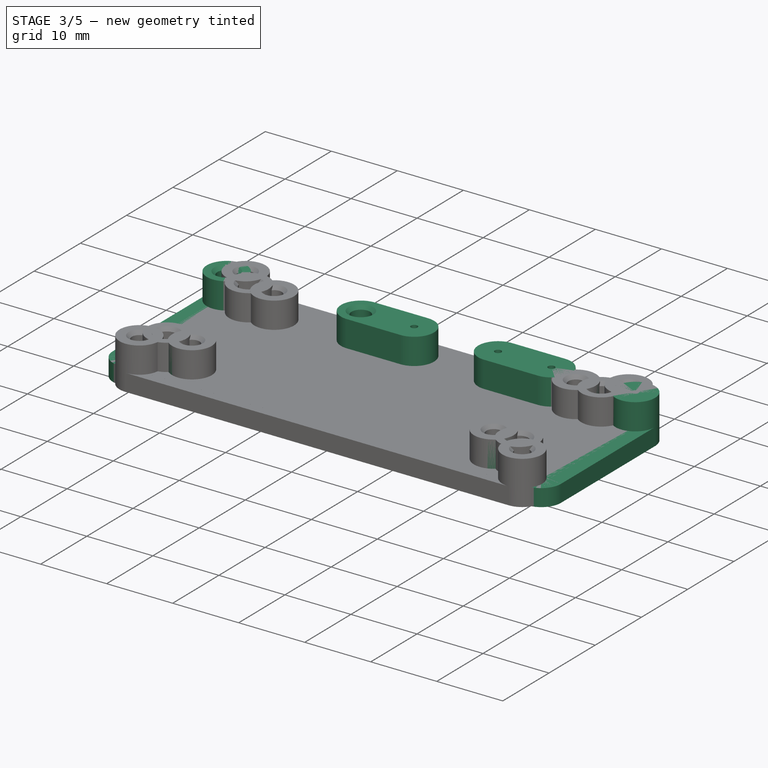
[diagram: stage 3 of 5 — iso view after this stage's code; geometry added in this stage tinted green]
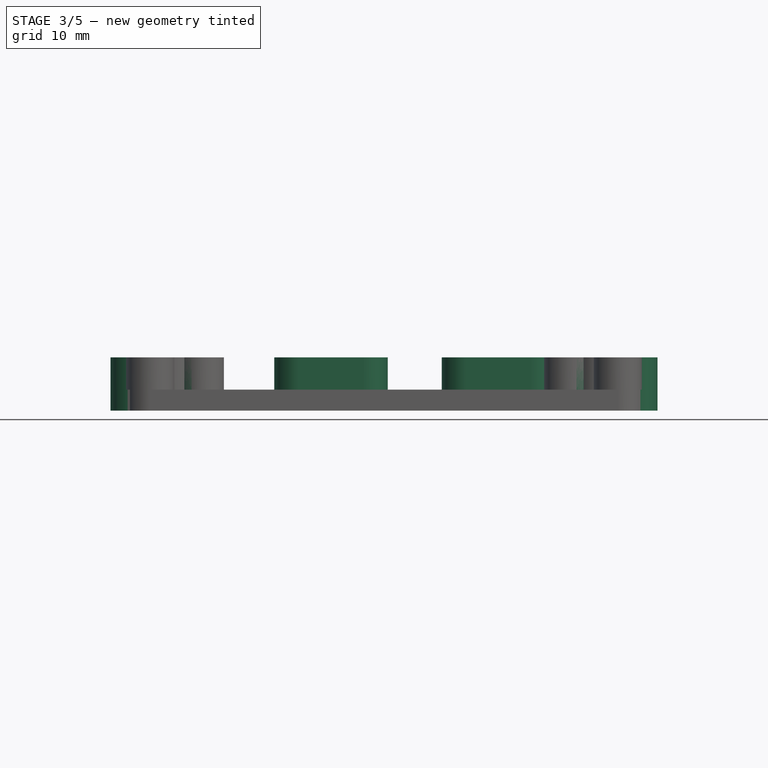
[diagram: stage 3 of 5 — front view after this stage's code; geometry added in this stage tinted green]
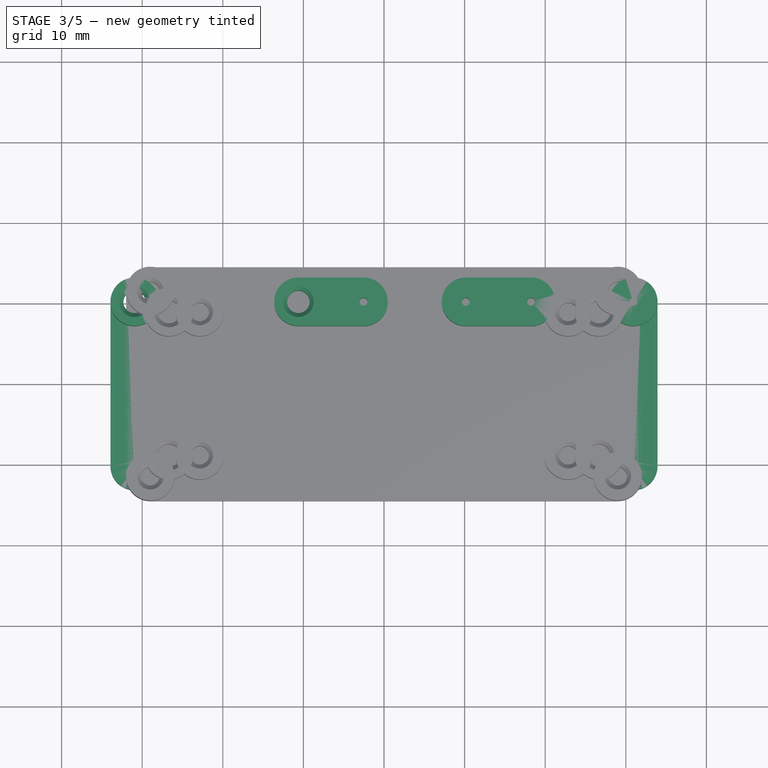
[diagram: stage 3 of 5 — top view after this stage's code; geometry added in this stage tinted green]
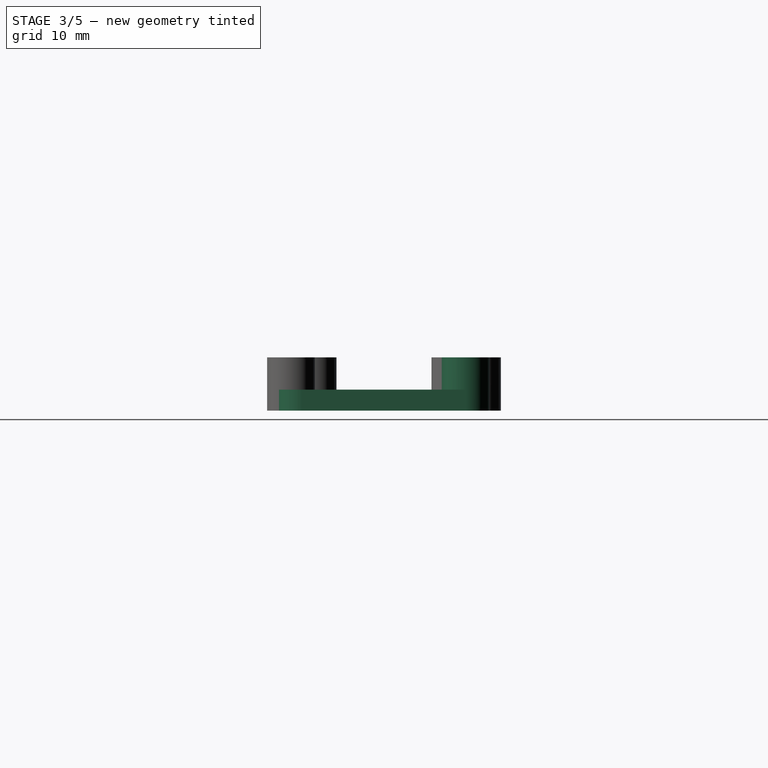
[diagram: stage 3 of 5 — right view after this stage's code; geometry added in this stage tinted green]
FEATURE [PartDesign::Body] Body001  label="4a"
  Group = -> [Sketch004,Pad002,Sketch005,Pad003,Sketch006,Hole002,MultiTransform001,Mirrored002,Mirrored003,Sketch007,Hole003]
  Origin = -> Origin001
  Tip = -> Hole003
FEATURE [Sketcher::SketchObject] Sketch008
  FullyConstrained = true
  MapMode = 5
  Support = -> [XY_Plane002]
  expr: Constraints[19] = <<param>>.clearance
  expr: Constraints[60] = <<param>>.big_outer
  expr: Constraints[61] = <<param>>.big_inner
  expr: Constraints[88] = <<param>>.small_inner
  expr: Constraints[89] = <<param>>.small_outer
  sketch-geometry (55):
    g0: ArcOfCircle CenterX=-30.94 CenterY=10.16 CenterZ=0 NormalX=0 NormalY=0 NormalZ=1 AngleXU=0 Radius=3 StartAngle=1.5708 EndAngle=3.14159
    g1: LineSegment StartX=-30.94 StartY=13.16 StartZ=0 EndX=30.94 EndY=13.16 EndZ=0
    g2: ArcOfCircle CenterX=30.94 CenterY=10.16 CenterZ=0 NormalX=0 NormalY=0 NormalZ=1 AngleXU=0 Radius=3 StartAngle=2e-16 EndAngle=1.5708
    g3: LineSegment StartX=33.94 StartY=10.16 StartZ=0 EndX=33.94 EndY=-10.16 EndZ=0
    g4: ArcOfCircle CenterX=30.94 CenterY=-10.16 CenterZ=0 NormalX=0 NormalY=0 NormalZ=1 AngleXU=0 Radius=3 StartAngle=4.71239 EndAngle=6.28319
    g5: LineSegment StartX=30.94 StartY=-13.16 StartZ=0 EndX=-30.94 EndY=-13.16 EndZ=0
    g6: ArcOfCircle CenterX=-30.94 CenterY=-10.16 CenterZ=0 NormalX=0 NormalY=0 NormalZ=1 AngleXU=0 Radius=3 StartAngle=3.14159 EndAngle=4.71239
    g7: LineSegment StartX=-33.94 StartY=-10.16 StartZ=0 EndX=-33.94 EndY=10.16 EndZ=0
    g8: GeomPoint X=-33.94 Y=13.16 Z=0
    g9: GeomPoint X=33.94 Y=-13.16 Z=0
    g10: LineSegment StartX=-30.94 StartY=10.16 StartZ=0 EndX=-30.94 EndY=-10.16 EndZ=0
    g11: LineSegment StartX=-30.94 StartY=-10.16 StartZ=0 EndX=-10.62 EndY=-10.16 EndZ=0
    g12: LineSegment StartX=-10.62 StartY=-10.16 StartZ=0 EndX=-10.62 EndY=10.16 EndZ=0
    g13: LineSegment StartX=-10.62 StartY=10.16 StartZ=0 EndX=-30.94 EndY=10.16 EndZ=0
    g14: GeomPoint X=-20.78 Y=0 Z=0
    g15: LineSegment StartX=-33.48 StartY=12.7 StartZ=0 EndX=-33.48 EndY=-12.7 EndZ=0
    g16: LineSegment StartX=-33.48 StartY=-12.7 StartZ=0 EndX=-8.08 EndY=-12.7 EndZ=0
    g17: LineSegment StartX=-8.08 StartY=-12.7 StartZ=0 EndX=-8.08 EndY=12.7 EndZ=0
    g18: LineSegment StartX=-8.08 StartY=12.7 StartZ=0 EndX=-33.48 EndY=12.7 EndZ=0
    g19: GeomPoint X=-20.78 Y=0 Z=0
    g20: LineSegment StartX=-5.08 StartY=12.7 StartZ=0 EndX=-5.08 EndY=-12.7 EndZ=0
    g21: LineSegment StartX=-5.08 StartY=-12.7 StartZ=0 EndX=12.7 EndY=-12.7 EndZ=0
    g22: LineSegment StartX=12.7 StartY=-12.7 StartZ=0 EndX=12.7 EndY=12.7 EndZ=0
    g23: LineSegment StartX=12.7 StartY=12.7 StartZ=0 EndX=-5.08 EndY=12.7 EndZ=0
    g24: GeomPoint X=3.81 Y=0 Z=0
    g25: LineSegment StartX=-2.54 StartY=10.16 StartZ=0 EndX=-2.54 EndY=-10.16 EndZ=0
    g26: LineSegment StartX=-2.54 StartY=-10.16 StartZ=0 EndX=10.16 EndY=-10.16 EndZ=0
    g27: LineSegment StartX=10.16 StartY=-10.16 StartZ=0 EndX=10.16 EndY=10.16 EndZ=0
    g28: LineSegment StartX=10.16 StartY=10.16 StartZ=0 EndX=-2.54 EndY=10.16 EndZ=0
    g29: GeomPoint X=3.81 Y=0 Z=0
    g30: LineSegment StartX=15.7 StartY=-12.7 StartZ=0 EndX=15.7 EndY=12.7 EndZ=0
    g31: LineSegment StartX=15.7 StartY=12.7 StartZ=0 EndX=33.48 EndY=12.7 EndZ=0
    g32: LineSegment StartX=33.48 StartY=12.7 StartZ=0 EndX=33.48 EndY=-12.7 EndZ=0
    g33: LineSegment StartX=33.48 StartY=-12.7 StartZ=0 EndX=15.7 EndY=-12.7 EndZ=0
    g34: GeomPoint X=24.59 Y=0 Z=0
    g35: LineSegment StartX=18.24 StartY=-10.16 StartZ=0 EndX=18.24 EndY=10.16 EndZ=0
    g36: LineSegment StartX=18.24 StartY=10.16 StartZ=0 EndX=30.94 EndY=10.16 EndZ=0
    g37: LineSegment StartX=30.94 StartY=10.16 StartZ=0 EndX=30.94 EndY=-10.16 EndZ=0
    g38: LineSegment StartX=30.94 StartY=-10.16 StartZ=0 EndX=18.24 EndY=-10.16 EndZ=0
    g39: GeomPoint X=24.59 Y=0 Z=0
    g40: LineSegment StartX=-33.94 StartY=10.16 StartZ=0 EndX=-30.94 EndY=10.16 EndZ=0
    g41: LineSegment StartX=-8.08 StartY=12.7 StartZ=0 EndX=-5.08 EndY=12.7 EndZ=0
    g42: LineSegment StartX=12.7 StartY=12.7 StartZ=0 EndX=15.7 EndY=12.7 EndZ=0
    g43: Circle CenterX=-30.94 CenterY=10.16 CenterZ=0 NormalX=0 NormalY=0 NormalZ=1 AngleXU=0 Radius=0.5
    g44: Circle CenterX=-10.62 CenterY=10.16 CenterZ=0 NormalX=0 NormalY=0 NormalZ=1 AngleXU=0 Radius=0.5
    g45: Circle CenterX=-2.54 CenterY=10.16 CenterZ=0 NormalX=0 NormalY=0 NormalZ=1 AngleXU=0 Radius=0.5
    g46: Circle CenterX=10.16 CenterY=10.16 CenterZ=0 NormalX=0 NormalY=0 NormalZ=1 AngleXU=0 Radius=0.5
    g47: Circle CenterX=18.24 CenterY=10.16 CenterZ=0 NormalX=0 NormalY=0 NormalZ=1 AngleXU=0 Radius=0.5
    g48: Circle CenterX=30.94 CenterY=10.16 CenterZ=0 NormalX=0 NormalY=0 NormalZ=1 AngleXU=0 Radius=0.5
    g49: Circle CenterX=-30.94 CenterY=-10.16 CenterZ=0 NormalX=0 NormalY=0 NormalZ=1 AngleXU=0 Radius=0.5
    g50: Circle CenterX=-10.62 CenterY=-10.16 CenterZ=0 NormalX=0 NormalY=0 NormalZ=1 AngleXU=0 Radius=0.5
    g51: Circle CenterX=-2.54 CenterY=-10.16 CenterZ=0 NormalX=0 NormalY=0 NormalZ=1 AngleXU=0 Radius=0.5
    g52: Circle CenterX=10.16 CenterY=-10.16 CenterZ=0 NormalX=0 NormalY=0 NormalZ=1 AngleXU=0 Radius=0.5
    g53: Circle CenterX=18.24 CenterY=-10.16 CenterZ=0 NormalX=0 NormalY=0 NormalZ=1 AngleXU=0 Radius=0.5
    g54: Circle CenterX=30.94 CenterY=-10.16 CenterZ=0 NormalX=0 NormalY=0 NormalZ=1 AngleXU=0 Radius=0.5
  constraints (127):
    c: Tangent(g0,g1) = 1.5708
    c: Tangent(g1,g2) = 1.5708
    c: Tangent(g2,g3) = 1.5708
    c: Tangent(g3,g4) = 1.5708
    c: Tangent(g4,g5) = 1.5708
    c: Tangent(g5,g6) = 1.5708
    c: Tangent(g6,g7) = 1.5708
    c: Tangent(g7,g0) = 1.5708
    c: Horizontal(g5)
    c: Vertical(g3)
    c: Vertical(g7)
    c: Equal(g0,g2)
    c: Equal(g2,g4)
    c: PointOnObject(g8,g1)
    c: PointOnObject(g8,g7)
    c: PointOnObject(g9,g3)
    c: PointOnObject(g9,g5)
    c: Symmetric(g0,g5,g-1)
    c: Symmetric(g0,g1,g-2)
    c: Radius(g0) = 3
    c: Coincident(g10,g11)
    c: Coincident(g11,g12)
    c: Coincident(g12,g13)
    c: Coincident(g13,g10)
    c: Horizontal(g11)
    c: Horizontal(g13)
    c: Vertical(g10)
    c: Vertical(g12)
    c: Symmetric(g11,g10,g14)
    c: PointOnObject(g14,g-1)
    c: Coincident(g15,g16)
    c: Coincident(g16,g17)
    c: Coincident(g17,g18)
    c: Coincident(g18,g15)
    c: Horizontal(g16)
    c: Horizontal(g18)
    c: Vertical(g15)
    c: Vertical(g17)
    c: Symmetric(g16,g15,g19)
    c: Coincident(g19,g14)
    c: Coincident(g20,g21)
    c: Coincident(g21,g22)
    c: Coincident(g22,g23)
    c: Coincident(g23,g20)
    c: Horizontal(g21)
    c: Horizontal(g23)
    c: Vertical(g20)
    c: Vertical(g22)
    c: Symmetric(g21,g20,g24)
    c: PointOnObject(g24,g-1)
    c: Coincident(g25,g26)
    c: Coincident(g26,g27)
    c: Coincident(g27,g28)
    c: Coincident(g28,g25)
    c: Horizontal(g26)
    c: Horizontal(g28)
    c: Vertical(g25)
    c: Vertical(g27)
    c: Symmetric(g26,g25,g29)
    c: Coincident(g29,g24)
    c: DistanceY(g15,g15) = 25.4
    c: DistanceY(g10,g10) = 20.32
    c: Coincident(g30,g31)
    c: Coincident(g31,g32)
    c: Coincident(g32,g33)
    c: Coincident(g33,g30)
    c: Horizontal(g31)
    c: Horizontal(g33)
    c: Vertical(g30)
    c: Vertical(g32)
    c: Symmetric(g31,g30,g34)
    c: PointOnObject(g34,g-1)
    c: Coincident(g35,g36)
    c: Coincident(g36,g37)
    c: Coincident(g37,g38)
    c: Coincident(g38,g35)
    c: Horizontal(g36)
    c: Horizontal(g38)
    c: Vertical(g35)
    c: Vertical(g37)
    c: Symmetric(g36,g35,g39)
    c: Coincident(g39,g34)
    c: Equal(g10,g25)
    c: Equal(g25,g35)
    c: Equal(g35,g13)
    c: Equal(g15,g18)
    c: Equal(g18,g20)
    c: Equal(g20,g30)
    c: DistanceX(g28,g28) = 12.7
    c: DistanceX(g23,g23) = 17.78
    c: Equal(g28,g36)
    c: Equal(g23,g31)
    c: Coincident(g0,g10)
    c: Coincident(g40,g0)
    c: Coincident(g40,g0)
    c: Coincident(g41,g17)
    c: Coincident(g41,g20)
    c: Coincident(g42,g22)
    c: Coincident(g42,g30)
    c: Equal(g40,g41)
    c: Equal(g41,g42)
    c: PointOnObject(g2,g37)
    c: DistanceX(g0,g2) = 67.88
    c: Coincident(g43,g0)
    c: Coincident(g44,g12)
    c: Coincident(g45,g25)
    c: Coincident(g46,g27)
    c: Coincident(g47,g35)
    c: Coincident(g48,g2)
    c: Coincident(g49,g6)
    c: Coincident(g50,g11)
    c: Coincident(g51,g25)
    c: Coincident(g52,g26)
    c: Coincident(g54,g4)
    c: Equal(g43,g44)
    c: Equal(g44,g45)
    c: Equal(g45,g46)
    c: Equal(g46,g47)
    c: Equal(g47,g48)
    c: Equal(g48,g49)
    c: Equal(g49,g50)
    c: Equal(g50,g51)
    c: Equal(g51,g52)
    c: Equal(g52,g53)
    c: Equal(g53,g54)
    c: Diameter(g43) = 1
    c: Coincident(g53,g35)
FEATURE [PartDesign::Pad] Pad004
  Direction = (0,0,1)
  Length = 2.6
  Length2 = 10
  Profile = -> Sketch008
  ReferenceAxis = -> Sketch008 [N_Axis]
  Refine = true
  Type = 0
  expr: Length = <<param>>.thickness
FEATURE [Sketcher::SketchObject] Sketch009
  ExternalGeometry = -> [Pad004]
  FullyConstrained = true
  MapMode = 5
  Placement = pos=(0,0,2.6) rot=(0,0,1;0rad)
  Support = -> [Pad004]
  sketch-geometry (16):
    g0: Circle CenterX=-30.94 CenterY=10.16 CenterZ=0 NormalX=0 NormalY=0 NormalZ=1 AngleXU=0 Radius=3
    g1: Circle CenterX=30.94 CenterY=10.16 CenterZ=0 NormalX=0 NormalY=0 NormalZ=1 AngleXU=0 Radius=3
    g2: ArcOfCircle CenterX=-10.62 CenterY=10.16 CenterZ=0 NormalX=0 NormalY=0 NormalZ=1 AngleXU=0 Radius=3 StartAngle=1.5708 EndAngle=4.71239
    g3: ArcOfCircle CenterX=-2.54 CenterY=10.16 CenterZ=0 NormalX=0 NormalY=0 NormalZ=1 AngleXU=0 Radius=3 StartAngle=4.71239 EndAngle=7.85398
    g4: LineSegment StartX=-10.62 StartY=7.16 StartZ=0 EndX=-2.54 EndY=7.16 EndZ=0
    g5: LineSegment StartX=-2.54 StartY=13.16 StartZ=0 EndX=-10.62 EndY=13.16 EndZ=0
    g6: ArcOfCircle CenterX=10.16 CenterY=10.16 CenterZ=0 NormalX=0 NormalY=0 NormalZ=1 AngleXU=0 Radius=3 StartAngle=1.5708 EndAngle=4.71239
    g7: ArcOfCircle CenterX=18.24 CenterY=10.16 CenterZ=0 NormalX=0 NormalY=0 NormalZ=1 AngleXU=0 Radius=3 StartAngle=4.71239 EndAngle=7.85398
    g8: LineSegment StartX=10.16 StartY=7.16 StartZ=0 EndX=18.24 EndY=7.16 EndZ=0
    g9: LineSegment StartX=18.24 StartY=13.16 StartZ=0 EndX=10.16 EndY=13.16 EndZ=0
    g10: Circle CenterX=-30.94 CenterY=10.16 CenterZ=0 NormalX=0 NormalY=0 NormalZ=1 AngleXU=0 Radius=0.5
    g11: Circle CenterX=-10.62 CenterY=10.16 CenterZ=0 NormalX=0 NormalY=0 NormalZ=1 AngleXU=0 Radius=0.5
    g12: Circle CenterX=-2.54 CenterY=10.16 CenterZ=0 NormalX=0 NormalY=0 NormalZ=1 AngleXU=0 Radius=0.5
    g13: Circle CenterX=10.16 CenterY=10.16 CenterZ=0 NormalX=0 NormalY=0 NormalZ=1 AngleXU=0 Radius=0.5
    g14: Circle CenterX=18.24 CenterY=10.16 CenterZ=0 NormalX=0 NormalY=0 NormalZ=1 AngleXU=0 Radius=0.5
    g15: Circle CenterX=30.94 CenterY=10.16 CenterZ=0 NormalX=0 NormalY=0 NormalZ=1 AngleXU=0 Radius=0.5
  constraints (32):
    c: Coincident(g0,g-9)
    c: PointOnObject(g-9,g0)
    c: Coincident(g1,g-10)
    c: PointOnObject(g-10,g1)
    c: Tangent(g2,g4) = -1.5708
    c: Tangent(g4,g3) = -1.5708
    c: Tangent(g3,g5) = -1.5708
    c: Tangent(g5,g2) = -1.5708
    c: Equal(g2,g3)
    c: Coincident(g2,g-4)
    c: Coincident(g3,g-5)
    c: Tangent(g6,g8) = -1.5708
    c: Tangent(g8,g7) = -1.5708
    c: Tangent(g7,g9) = -1.5708
    c: Tangent(g9,g6) = -1.5708
    c: Equal(g6,g7)
    c: Coincident(g6,g-6)
    c: Coincident(g7,g-7)
    c: PointOnObject(g2,g-11)
    c: PointOnObject(g6,g-11)
    c: Coincident(g10,g0)
    c: Coincident(g11,g2)
    c: Coincident(g12,g3)
    c: Coincident(g13,g6)
    c: Coincident(g14,g7)
    c: Coincident(g15,g1)
    c: Equal(g10,g-3)
    c: Equal(g11,g-4)
    c: Equal(g12,g-5)
    c: Equal(g13,g-6)
    c: Equal(g14,g-7)
    c: Equal(g15,g-8)
FEATURE [PartDesign::Pad] Pad005
  BaseFeature = -> Pad004
  Direction = (0,0,1)
  Length = 4
  Length2 = 10
  Profile = -> Sketch009
  ReferenceAxis = -> Sketch009 [N_Axis]
  Refine = true
  Type = 0
  expr: Length = <<param>>.standoff
FEATURE [Sketcher::SketchObject] Sketch010
  ExternalGeometry = -> [Pad005]
  FullyConstrained = true
  MapMode = 5
  Placement = pos=(0,0,6.6) rot=(0,0,1;0rad)
  Support = -> [Pad005]
  sketch-geometry (2):
    g0: Circle CenterX=-30.94 CenterY=10.16 CenterZ=0 NormalX=0 NormalY=0 NormalZ=1 AngleXU=0 Radius=0.5
    g1: Circle CenterX=-10.62 CenterY=10.16 CenterZ=0 NormalX=0 NormalY=0 NormalZ=1 AngleXU=0 Radius=0.5
  constraints (4):
    c: Coincident(g0,g-3)
    c: Coincident(g1,g-4)
    c: Equal(g0,g-3)
    c: Equal(g1,g-4)
FEATURE [PartDesign::Hole] Hole004
  BaseFeature = -> Pad005
  CustomThreadClearance = 0
  Depth = 149.907
  DepthType = 1
  Diameter = 2.8
  DrillForDepth = false
  DrillPoint = 1
  DrillPointAngle = 118
  HoleCutCountersinkAngle = 90
  HoleCutCustomValues = false
  HoleCutDepth = 0
  HoleCutDiameter = 3.8
  HoleCutType = 2
  ModelThread = false
  Profile = -> Sketch010
  Refine = true
  Tapered = false
  TaperedAngle = 90
  ThreadClass = 0
  ThreadDepth = 149.907
  ThreadDepthType = 0
  ThreadDirection = 0
  ThreadFit = 0
  ThreadSize = 0
  ThreadType = 0
  Threaded = false
  UseCustomThreadClearance = false
  expr: Diameter = <<param>>.m3_dia
  expr: HoleCutDiameter = <<param>>.m3_cs
FEATURE [Sketcher::SketchObject] Sketch016
  FullyConstrained = true
  MapMode = 5
  Placement = pos=(0,0,2.6) rot=(0,0,1;0rad)
  Support = -> [Hole007]
  sketch-geometry (2):
    g0: Circle CenterX=-25.5 CenterY=0 CenterZ=0 NormalX=0 NormalY=0 NormalZ=1 AngleXU=0 Radius=1.5
    g1: Circle CenterX=25.5 CenterY=0 CenterZ=0 NormalX=0 NormalY=0 NormalZ=1 AngleXU=0 Radius=1.5
  constraints (5):
    c: PointOnObject(g0,g-1)
    c: Equal(g1,g0)
    c: Diameter(g0) = 3
    c: DistanceX(g0,g1) = 51
    c: Symmetric(g1,g0,g-2)
FEATURE [PartDesign::Hole] Hole008
  BaseFeature = -> Hole007
  CustomThreadClearance = 0
  Depth = 135.332
  DepthType = 1
  Diameter = 3.2
  DrillForDepth = false
  DrillPoint = 1
  DrillPointAngle = 118
  HoleCutCountersinkAngle = 90
  HoleCutCustomValues = false
  HoleCutDepth = 1.7
  HoleCutDiameter = 6
  HoleCutType = 9
  ModelThread = false
  Profile = -> Sketch016
  Refine = true
  Tapered = false
  TaperedAngle = 90
  ThreadClass = 0
  ThreadDepth = 135.332
  ThreadDepthType = 0
  ThreadDirection = 0
  ThreadFit = 1
  ThreadSize = 9
  ThreadType = 1
  Threaded = false
  UseCustomThreadClearance = false
FEATURE [Sketcher::SketchObject] Sketch017
  ExternalGeometry = -> [Hole008]
  FullyConstrained = true
  MapMode = 5
  Placement = pos=(0,0,2.6) rot=(0,0,1;0rad)
  Support = -> [Hole008]
  sketch-geometry (11):
    g0: GeomPoint X=-28.5 Y=0 Z=0
    g1: ArcOfCircle CenterX=-22.86 CenterY=8.89 CenterZ=0 NormalX=0 NormalY=0 NormalZ=1 AngleXU=0 Radius=3 StartAngle=1.5708 EndAngle=3.14159
    g2: ArcOfCircle CenterX=-32.9749 CenterY=8.89 CenterZ=0 NormalX=0 NormalY=0 NormalZ=1 AngleXU=0 Radius=7.11494 StartAngle=5.41153 EndAngle=6.28319
    g3: ArcOfCircle CenterX=-25.5 CenterY=7e-16 CenterZ=0 NormalX=0 NormalY=0 NormalZ=1 AngleXU=0 Radius=4.5 StartAngle=2.26994 EndAngle=4.01325
    g4: ArcOfCircle CenterX=-32.9749 CenterY=-8.89 CenterZ=0 NormalX=0 NormalY=0 NormalZ=1 AngleXU=0 Radius=7.11494 StartAngle=0 EndAngle=0.871653
    g5: ArcOfCircle CenterX=-22.86 CenterY=-8.89 CenterZ=0 NormalX=0 NormalY=0 NormalZ=1 AngleXU=0 Radius=3 StartAngle=3.14159 EndAngle=4.71239
    g6: LineSegment StartX=-32.9749 StartY=8.89 StartZ=0 EndX=-32.9749 EndY=11.89 EndZ=0
    g7: LineSegment StartX=-32.9749 StartY=11.89 StartZ=0 EndX=-22.86 EndY=11.89 EndZ=0
    g8: LineSegment StartX=-32.9749 StartY=8.89 StartZ=0 EndX=-32.9749 EndY=-8.89 EndZ=0
    g9: LineSegment StartX=-32.9749 StartY=-8.89 StartZ=0 EndX=-32.9749 EndY=-11.89 EndZ=0
    g10: LineSegment StartX=-32.9749 StartY=-11.89 StartZ=0 EndX=-22.86 EndY=-11.89 EndZ=0
  constraints (29):
    c: Diameter(g-5) = 6
    c: Diameter(g-4) = 6
    c: PointOnObject(g0,g-5)
    c: PointOnObject(g0,g-1)
    c: Coincident(g1,g-4)
    c: Coincident(g1,g-9)
    c: Tangent(g3,g-6)
    c: Coincident(g5,g-3)
    c: Coincident(g5,g-10)
    c: Tangent(g5,g4) = 1.5708
    c: Tangent(g4,g3) = 1.5708
    c: Tangent(g3,g2) = 1.5708
    c: Tangent(g2,g1) = 1.5708
    c: Symmetric(g3,g2,g-1)
    c: Horizontal(g4,g5)
    c: Coincident(g3,g-5)
    c: Coincident(g6,g2)
    c: Vertical(g6)
    c: Coincident(g7,g6)
    c: Coincident(g7,g1)
    c: Horizontal(g7)
    c: Coincident(g8,g2)
    c: Coincident(g8,g4)
    c: Vertical(g8)
    c: Coincident(g9,g4)
    c: Vertical(g9)
    c: Coincident(g10,g9)
    c: Coincident(g10,g5)
    c: Horizontal(g10)
FEATURE [PartDesign::Pocket] Pocket
  BaseFeature = -> Hole008
  Direction = (0,0,-1)
  Length = 5
  Length2 = 5
  Profile = -> Sketch017
  ReferenceAxis = -> Sketch017 [N_Axis]
  Refine = true
  Type = 1
FEATURE [PartDesign::Mirrored] Mirrored005
  BaseFeature = -> Pocket
  MirrorPlane = -> Sketch017 [V_Axis]
  Originals = -> [Pocket]
  Refine = true
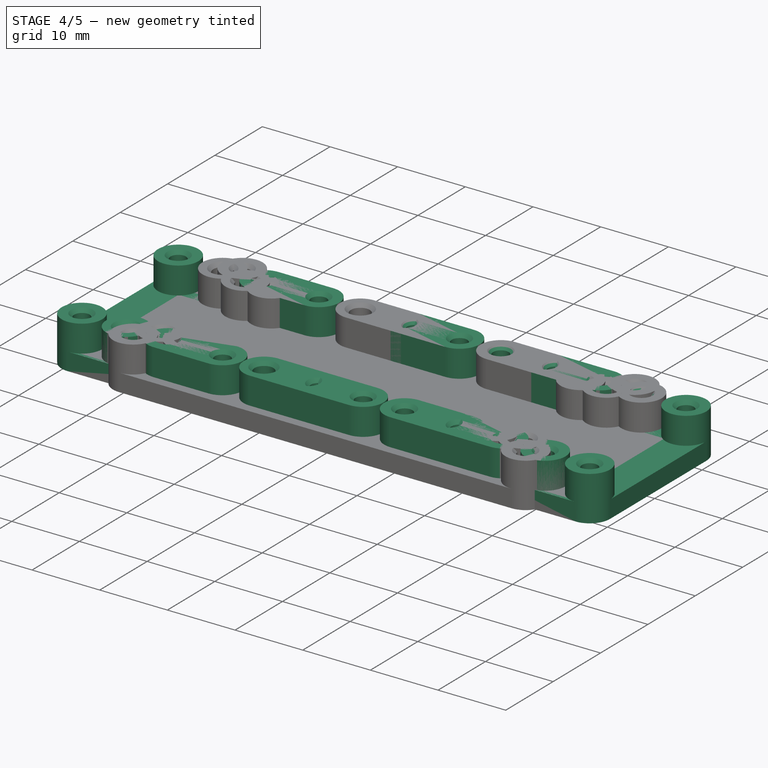
[diagram: stage 4 of 5 — iso view after this stage's code; geometry added in this stage tinted green]
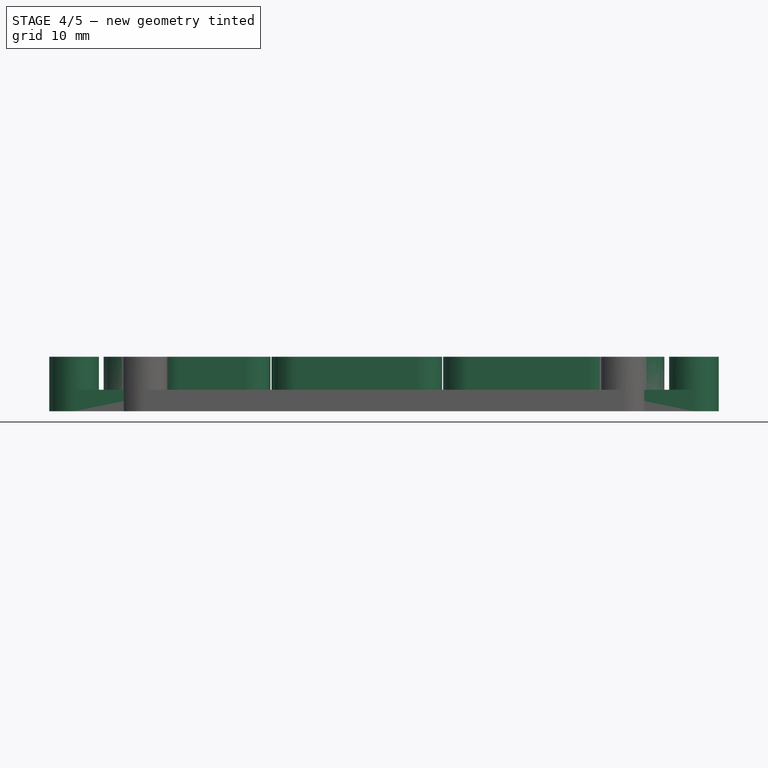
[diagram: stage 4 of 5 — front view after this stage's code; geometry added in this stage tinted green]
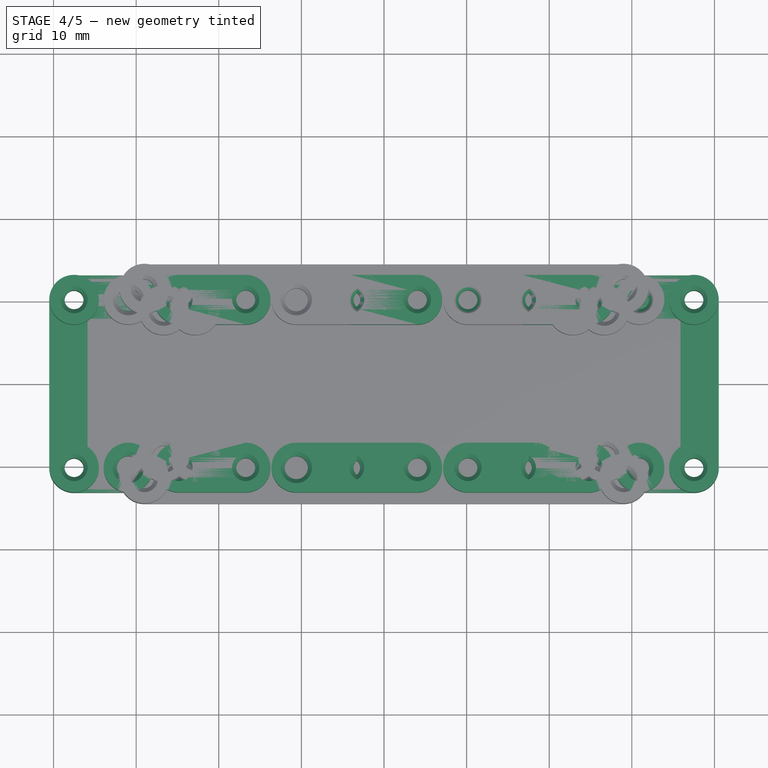
[diagram: stage 4 of 5 — top view after this stage's code; geometry added in this stage tinted green]
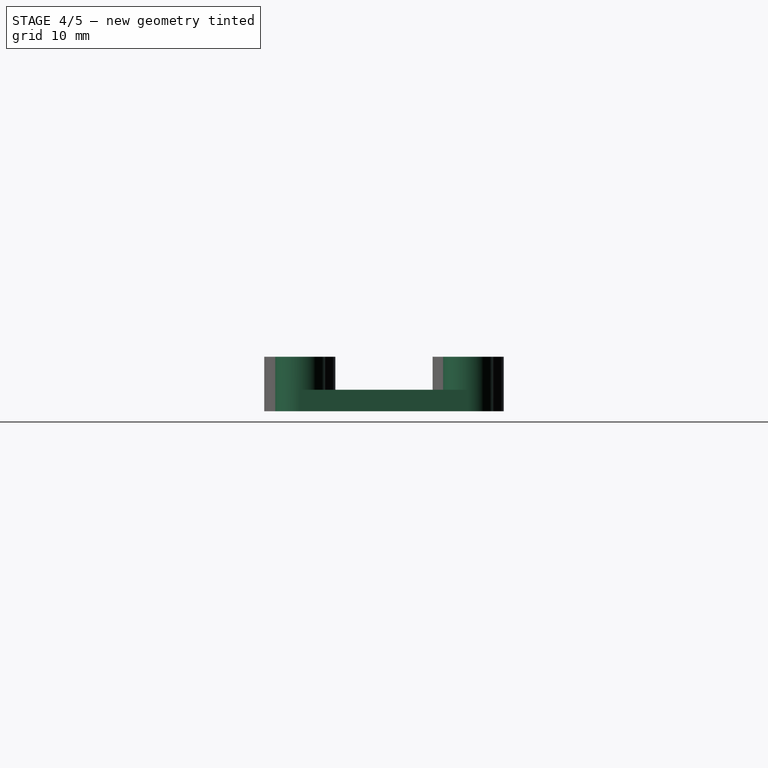
[diagram: stage 4 of 5 — right view after this stage's code; geometry added in this stage tinted green]
FEATURE [PartDesign::Body] Body  label="3s"
  Group = -> [Sketch,Pad,Sketch001,Pad001,Sketch002,Hole,MultiTransform,Mirrored,Mirrored001,Sketch003,Hole001]
  Origin = -> Origin
  Tip = -> Hole001
FEATURE [Sketcher::SketchObject] Sketch004
  FullyConstrained = true
  MapMode = 5
  Support = -> [XY_Plane001]
  expr: Constraints[20] = <<param>>.big_outer
  expr: Constraints[21] = <<param>>.big_inner
  expr: Constraints[22] = <<param>>.small_inner
  expr: Constraints[23] = <<param>>.small_outer
  expr: Constraints[62] = <<param>>.clearance
  sketch-geometry (32):
    g0: LineSegment StartX=-37.52 StartY=-10.16 StartZ=0 EndX=-37.52 EndY=10.16 EndZ=0
    g1: LineSegment StartX=-37.52 StartY=10.16 StartZ=0 EndX=-24.82 EndY=10.16 EndZ=0
    g2: LineSegment StartX=-24.82 StartY=10.16 StartZ=0 EndX=-24.82 EndY=-10.16 EndZ=0
    g3: LineSegment StartX=-24.82 StartY=-10.16 StartZ=0 EndX=-37.52 EndY=-10.16 EndZ=0
    g4: GeomPoint X=-31.17 Y=0 Z=0
    g5: LineSegment StartX=-40.06 StartY=-12.7 StartZ=0 EndX=-40.06 EndY=12.7 EndZ=0
    g6: LineSegment StartX=-40.06 StartY=12.7 StartZ=0 EndX=-22.28 EndY=12.7 EndZ=0
    g7: LineSegment StartX=-22.28 StartY=12.7 StartZ=0 EndX=-22.28 EndY=-12.7 EndZ=0
    g8: LineSegment StartX=-22.28 StartY=-12.7 StartZ=0 EndX=-40.06 EndY=-12.7 EndZ=0
    g9: GeomPoint X=-31.17 Y=0 Z=0
    g10: Circle CenterX=-37.52 CenterY=10.16 CenterZ=0 NormalX=0 NormalY=0 NormalZ=1 AngleXU=0 Radius=0.5
    g11: Circle CenterX=-24.82 CenterY=10.16 CenterZ=0 NormalX=0 NormalY=0 NormalZ=1 AngleXU=0 Radius=0.5
    g12: LineSegment StartX=-16.74 StartY=-10.16 StartZ=0 EndX=-16.74 EndY=10.16 EndZ=0
    g13: LineSegment StartX=-16.74 StartY=10.16 StartZ=0 EndX=-4.04 EndY=10.16 EndZ=0
    g14: LineSegment StartX=-4.04 StartY=10.16 StartZ=0 EndX=-4.04 EndY=-10.16 EndZ=0
    g15: LineSegment StartX=-4.04 StartY=-10.16 StartZ=0 EndX=-16.74 EndY=-10.16 EndZ=0
    g16: GeomPoint X=-10.39 Y=0 Z=0
    g17: LineSegment StartX=-19.28 StartY=-12.7 StartZ=0 EndX=-19.28 EndY=12.7 EndZ=0
    g18: LineSegment StartX=-19.28 StartY=12.7 StartZ=0 EndX=-1.5 EndY=12.7 EndZ=0
    g19: LineSegment StartX=-1.5 StartY=12.7 StartZ=0 EndX=-1.5 EndY=-12.7 EndZ=0
    g20: LineSegment StartX=-1.5 StartY=-12.7 StartZ=0 EndX=-19.28 EndY=-12.7 EndZ=0
    g21: GeomPoint X=-10.39 Y=0 Z=0
    g22: LineSegment StartX=0 StartY=0 StartZ=0 EndX=-40.52 EndY=0 EndZ=0
    g23: LineSegment StartX=-40.52 StartY=0 StartZ=0 EndX=-40.52 EndY=10.16 EndZ=0
    g24: LineSegment StartX=-37.52 StartY=13.16 StartZ=0 EndX=0 EndY=13.16 EndZ=0
    g25: LineSegment StartX=0 StartY=13.16 StartZ=0 EndX=0 EndY=0 EndZ=0
    g26: ArcOfCircle CenterX=-37.52 CenterY=10.16 CenterZ=0 NormalX=0 NormalY=0 NormalZ=1 AngleXU=0 Radius=3 StartAngle=1.5708 EndAngle=3.14159
    g27: LineSegment StartX=-40.52 StartY=10.16 StartZ=0 EndX=-37.52 EndY=10.16 EndZ=0
    g28: LineSegment StartX=-22.28 StartY=12.7 StartZ=0 EndX=-19.28 EndY=12.7 EndZ=0
    g29: LineSegment StartX=-1.5 StartY=12.7 StartZ=0 EndX=1.5 EndY=12.7 EndZ=0
    g30: Circle CenterX=-16.74 CenterY=10.16 CenterZ=0 NormalX=0 NormalY=0 NormalZ=1 AngleXU=0 Radius=0.5
    g31: Circle CenterX=-4.04 CenterY=10.16 CenterZ=0 NormalX=0 NormalY=0 NormalZ=1 AngleXU=0 Radius=0.5
  constraints (76):
    c: Coincident(g0,g1)
    c: Coincident(g1,g2)
    c: Coincident(g2,g3)
    c: Coincident(g3,g0)
    c: Horizontal(g1)
    c: Horizontal(g3)
    c: Vertical(g0)
    c: Vertical(g2)
    c: Symmetric(g1,g0,g4)
    c: PointOnObject(g4,g-1)
    c: Coincident(g5,g6)
    c: Coincident(g6,g7)
    c: Coincident(g7,g8)
    c: Coincident(g8,g5)
    c: Horizontal(g6)
    c: Horizontal(g8)
    c: Vertical(g5)
    c: Vertical(g7)
    c: Symmetric(g6,g5,g9)
    c: Coincident(g9,g4)
    c: DistanceY(g5,g5) = 25.4
    c: DistanceY(g0,g0) = 20.32
    c: DistanceX(g1,g1) = 12.7
    c: DistanceX(g6,g6) = 17.78
    c: Coincident(g10,g0)
    c: Coincident(g11,g1)
    c: Equal(g11,g10)
    c: Diameter(g10) = 1
    c: Coincident(g12,g13)
    c: Coincident(g13,g14)
    c: Coincident(g14,g15)
    c: Coincident(g15,g12)
    c: Horizontal(g13)
    c: Horizontal(g15)
    c: Vertical(g12)
    c: Vertical(g14)
    c: Symmetric(g13,g12,g16)
    c: PointOnObject(g16,g-1)
    c: Coincident(g17,g18)
    c: Coincident(g18,g19)
    c: Coincident(g19,g20)
    c: Coincident(g20,g17)
    c: Horizontal(g18)
    c: Horizontal(g20)
    c: Vertical(g17)
    c: Vertical(g19)
    c: Symmetric(g18,g17,g21)
    c: Coincident(g21,g16)
    c: Equal(g5,g17)
    c: Equal(g6,g18)
    c: Equal(g0,g12)
    c: Equal(g1,g13)
    c: Coincident(g22,g23)
    c: Coincident(g24,g25)
    c: Coincident(g25,g22)
    c: Horizontal(g22)
    c: Horizontal(g24)
    c: Vertical(g23)
    c: Vertical(g25)
    c: Coincident(g22,g-1)
    c: Tangent(g23,g26) = 1.5708
    c: Tangent(g24,g26) = 1.5708
    c: Radius(g26) = 3
    c: Coincident(g26,g10)
    c: Coincident(g27,g23)
    c: Coincident(g27,g10)
    c: Coincident(g28,g6)
    c: Coincident(g28,g17)
    c: Equal(g27,g28)
    c: Coincident(g29,g18)
    c: Symmetric(g18,g29,g-2)
    c: Equal(g27,g29)
    c: Coincident(g30,g12)
    c: Coincident(g31,g13)
    c: Equal(g10,g30)
    c: Equal(g30,g31)
FEATURE [PartDesign::Pad] Pad002
  Direction = (0,0,1)
  Length = 2.6
  Length2 = 10
  Profile = -> Sketch004
  ReferenceAxis = -> Sketch004 [N_Axis]
  Refine = true
  Type = 0
  expr: Length = <<param>>.thickness
FEATURE [Sketcher::SketchObject] Sketch005
  ExternalGeometry = -> [Pad002]
  FullyConstrained = true
  MapMode = 5
  Placement = pos=(0,0,2.6) rot=(0,0,1;0rad)
  Support = -> [Pad002]
  sketch-geometry (13):
    g0: Circle CenterX=-37.52 CenterY=10.16 CenterZ=0 NormalX=0 NormalY=0 NormalZ=1 AngleXU=0 Radius=3
    g1: ArcOfCircle CenterX=-24.82 CenterY=10.16 CenterZ=0 NormalX=0 NormalY=0 NormalZ=1 AngleXU=0 Radius=3 StartAngle=1.5708 EndAngle=4.71239
    g2: ArcOfCircle CenterX=-16.74 CenterY=10.16 CenterZ=0 NormalX=0 NormalY=0 NormalZ=1 AngleXU=0 Radius=3 StartAngle=4.71239 EndAngle=7.85398
    g3: LineSegment StartX=-24.82 StartY=7.16 StartZ=0 EndX=-16.74 EndY=7.16 EndZ=0
    g4: LineSegment StartX=-16.74 StartY=13.16 StartZ=0 EndX=-24.82 EndY=13.16 EndZ=0
    g5: ArcOfCircle CenterX=-4.04 CenterY=10.16 CenterZ=0 NormalX=0 NormalY=0 NormalZ=1 AngleXU=0 Radius=3 StartAngle=1.5708 EndAngle=4.71239
    g6: LineSegment StartX=-4.04 StartY=7.16 StartZ=0 EndX=0 EndY=7.16 EndZ=0
    g7: LineSegment StartX=0 StartY=13.16 StartZ=0 EndX=-4.04 EndY=13.16 EndZ=0
    g8: LineSegment StartX=0 StartY=7.16 StartZ=0 EndX=0 EndY=13.16 EndZ=0
    g9: Circle CenterX=-37.52 CenterY=10.16 CenterZ=0 NormalX=0 NormalY=0 NormalZ=1 AngleXU=0 Radius=0.5
    g10: Circle CenterX=-24.82 CenterY=10.16 CenterZ=0 NormalX=0 NormalY=0 NormalZ=1 AngleXU=0 Radius=0.5
    g11: Circle CenterX=-16.74 CenterY=10.16 CenterZ=0 NormalX=0 NormalY=0 NormalZ=1 AngleXU=0 Radius=0.5
    g12: Circle CenterX=-4.04 CenterY=10.16 CenterZ=0 NormalX=0 NormalY=0 NormalZ=1 AngleXU=0 Radius=0.5
  constraints (28):
    c: Coincident(g0,g-4)
    c: PointOnObject(g-8,g0)
    c: Tangent(g1,g3) = -1.5708
    c: Tangent(g3,g2) = -1.5708
    c: Tangent(g2,g4) = -1.5708
    c: Tangent(g4,g1) = -1.5708
    c: Equal(g1,g2)
    c: Coincident(g1,g-5)
    c: Coincident(g2,g-6)
    c: PointOnObject(g1,g-8)
    c: Tangent(g5,g6) = -1.5708
    c: Tangent(g7,g5) = -1.5708
    c: Coincident(g5,g-7)
    c: Horizontal(g6)
    c: PointOnObject(g5,g-8)
    c: Horizontal(g7)
    c: Coincident(g8,g6)
    c: Vertical(g8)
    c: Coincident(g8,g7)
    c: PointOnObject(g7,g-2)
    c: Coincident(g9,g0)
    c: Coincident(g10,g1)
    c: Coincident(g11,g2)
    c: Coincident(g12,g5)
    c: Equal(g9,g-3)
    c: Equal(g10,g-5)
    c: Equal(g11,g-6)
    c: Equal(g12,g-7)
FEATURE [PartDesign::Pad] Pad003
  BaseFeature = -> Pad002
  Direction = (0,0,1)
  Length = 4
  Length2 = 10
  Profile = -> Sketch005
  ReferenceAxis = -> Sketch005 [N_Axis]
  Refine = true
  Type = 0
  expr: Length = <<param>>.standoff
FEATURE [Sketcher::SketchObject] Sketch006
  ExternalGeometry = -> [Pad003]
  FullyConstrained = true
  MapMode = 5
  Placement = pos=(0,0,6.6) rot=(0,0,1;0rad)
  Support = -> [Pad003]
  sketch-geometry (4):
    g0: Circle CenterX=-37.52 CenterY=10.16 CenterZ=0 NormalX=0 NormalY=0 NormalZ=1 AngleXU=0 Radius=0.5
    g1: Circle CenterX=-24.82 CenterY=10.16 CenterZ=0 NormalX=0 NormalY=0 NormalZ=1 AngleXU=0 Radius=0.5
    g2: Circle CenterX=-16.74 CenterY=10.16 CenterZ=0 NormalX=0 NormalY=0 NormalZ=1 AngleXU=0 Radius=0.5
    g3: Circle CenterX=-4.04 CenterY=10.16 CenterZ=0 NormalX=0 NormalY=0 NormalZ=1 AngleXU=0 Radius=0.5
  constraints (8):
    c: Coincident(g0,g-3)
    c: Coincident(g1,g-4)
    c: Coincident(g2,g-5)
    c: Coincident(g3,g-6)
    c: Equal(g0,g-3)
    c: Equal(g1,g-4)
    c: Equal(g2,g-5)
    c: Equal(g3,g-6)
FEATURE [PartDesign::Hole] Hole002
  BaseFeature = -> Pad003
  CustomThreadClearance = 0
  Depth = 88.4266
  DepthType = 1
  Diameter = 2.3
  DrillForDepth = false
  DrillPoint = 1
  DrillPointAngle = 118
  HoleCutCountersinkAngle = 90
  HoleCutCustomValues = false
  HoleCutDepth = 0
  HoleCutDiameter = 3.3
  HoleCutType = 2
  ModelThread = false
  Profile = -> Sketch006
  Refine = true
  Tapered = false
  TaperedAngle = 90
  ThreadClass = 0
  ThreadDepth = 88.4266
  ThreadDepthType = 0
  ThreadDirection = 0
  ThreadFit = 0
  ThreadSize = 0
  ThreadType = 0
  Threaded = false
  UseCustomThreadClearance = false
  expr: Diameter = Spreadsheet.m2p5_dia
  expr: HoleCutDiameter = Spreadsheet.m2p5_cs
FEATURE [PartDesign::Mirrored] Mirrored002
  MirrorPlane = -> Sketch004 [V_Axis]
  Refine = true
FEATURE [PartDesign::Mirrored] Mirrored003
  MirrorPlane = -> Sketch004 [H_Axis]
  Refine = true
FEATURE [PartDesign::MultiTransform] MultiTransform001
  BaseFeature = -> Hole002
  Originals = -> [Pad002,Pad003,Hole002]
  Refine = true
  Transformations = -> [Mirrored002,Mirrored003]
FEATURE [Sketcher::SketchObject] Sketch011
  ExternalGeometry = -> [Hole004]
  FullyConstrained = true
  MapMode = 5
  Placement = pos=(0,0,6.6) rot=(0,0,1;0rad)
  Support = -> [Hole004]
  sketch-geometry (4):
    g0: Circle CenterX=-2.54 CenterY=10.16 CenterZ=0 NormalX=0 NormalY=0 NormalZ=1 AngleXU=0 Radius=0.5
    g1: Circle CenterX=10.16 CenterY=10.16 CenterZ=0 NormalX=0 NormalY=0 NormalZ=1 AngleXU=0 Radius=0.5
    g2: Circle CenterX=18.24 CenterY=10.16 CenterZ=0 NormalX=0 NormalY=0 NormalZ=1 AngleXU=0 Radius=0.5
    g3: Circle CenterX=30.94 CenterY=10.16 CenterZ=0 NormalX=0 NormalY=0 NormalZ=1 AngleXU=0 Radius=0.5
  constraints (8):
    c: Coincident(g0,g-3)
    c: Coincident(g1,g-4)
    c: Coincident(g2,g-5)
    c: Coincident(g3,g-6)
    c: Equal(g0,g-3)
    c: Equal(g1,g-4)
    c: Equal(g2,g-5)
    c: Equal(g3,g-6)
FEATURE [PartDesign::Hole] Hole005
  BaseFeature = -> Hole004
  CustomThreadClearance = 0
  Depth = 149.907
  DepthType = 1
  Diameter = 2.3
  DrillForDepth = false
  DrillPoint = 1
  DrillPointAngle = 118
  HoleCutCountersinkAngle = 90
  HoleCutCustomValues = false
  HoleCutDepth = 0
  HoleCutDiameter = 3.3
  HoleCutType = 2
  ModelThread = false
  Profile = -> Sketch011
  Refine = true
  Tapered = false
  TaperedAngle = 90
  ThreadClass = 0
  ThreadDepth = 149.907
  ThreadDepthType = 0
  ThreadDirection = 0
  ThreadFit = 0
  ThreadSize = 0
  ThreadType = 0
  Threaded = false
  UseCustomThreadClearance = false
  expr: Diameter = <<param>>.m2p5_dia
  expr: HoleCutDiameter = <<param>>.m2p5_cs
FEATURE [PartDesign::Mirrored] Mirrored004
  BaseFeature = -> Hole005
  MirrorPlane = -> Sketch009 [H_Axis]
  Originals = -> [Pad005,Hole004,Hole005]
  Refine = true
FEATURE [Sketcher::SketchObject] Sketch012
  FullyConstrained = true
  MapMode = 5
  Placement = pos=(0,0,2.6) rot=(0,0,1;0rad)
  Support = -> [Mirrored004]
  sketch-geometry (2):
    g0: Circle CenterX=-25.5 CenterY=0 CenterZ=0 NormalX=0 NormalY=0 NormalZ=1 AngleXU=0 Radius=1.5
    g1: Circle CenterX=25.5 CenterY=0 CenterZ=0 NormalX=0 NormalY=0 NormalZ=1 AngleXU=0 Radius=1.5
  constraints (5):
    c: PointOnObject(g0,g-1)
    c: Equal(g0,g1)
    c: DistanceX(g0,g1) = 51
    c: Symmetric(g0,g1,g-2)
    c: Diameter(g0) = 3
FEATURE [PartDesign::Hole] Hole006
  BaseFeature = -> Mirrored004
  CustomThreadClearance = 0
  Depth = 149.907
  DepthType = 1
  Diameter = 3.2
  DrillForDepth = false
  DrillPoint = 1
  DrillPointAngle = 118
  HoleCutCountersinkAngle = 90
  HoleCutCustomValues = false
  HoleCutDepth = 1.7
  HoleCutDiameter = 6
  HoleCutType = 9
  ModelThread = false
  Profile = -> Sketch012
  Refine = true
  Tapered = false
  TaperedAngle = 90
  ThreadClass = 0
  ThreadDepth = 149.907
  ThreadDepthType = 0
  ThreadDirection = 0
  ThreadFit = 1
  ThreadSize = 9
  ThreadType = 1
  Threaded = false
  UseCustomThreadClearance = false
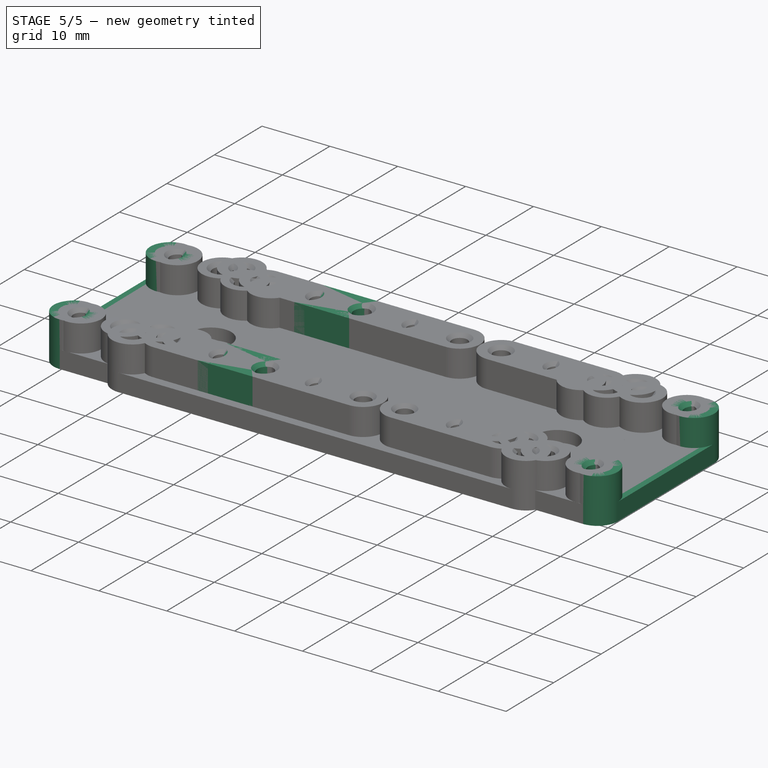
[diagram: stage 5 of 5 — iso view after this stage's code; geometry added in this stage tinted green]
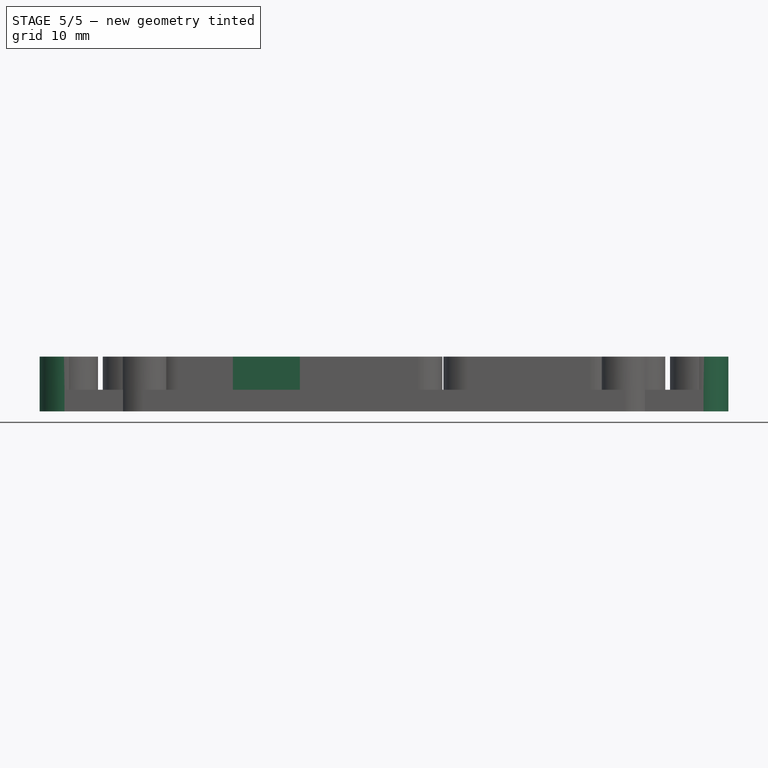
[diagram: stage 5 of 5 — front view after this stage's code; geometry added in this stage tinted green]
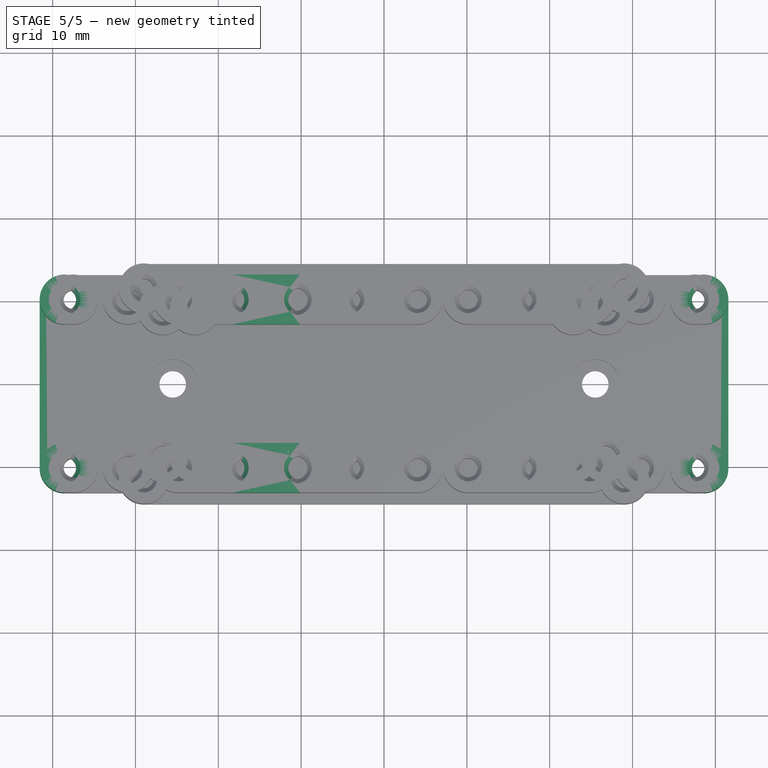
[diagram: stage 5 of 5 — top view after this stage's code; geometry added in this stage tinted green]
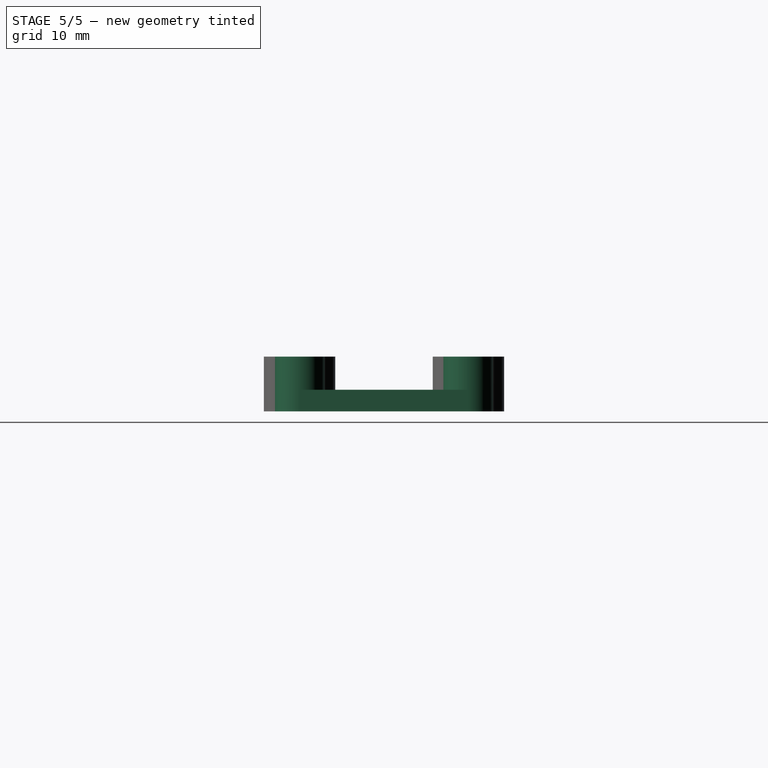
[diagram: stage 5 of 5 — right view after this stage's code; geometry added in this stage tinted green]
FEATURE [Spreadsheet::Sheet] Spreadsheet  label="param"
  cells = A1=Parameter; B1=Value; C1=Description; A2=big_outer; B2(big_outer)==1in; C2=Outer dimension for large modules; A3=big_inner; B3(big_inner)==0.8in; C3=Inner dimension for large modules; A4=small_outer; B4(small_outer)==0.7in; C4=Outer dimension for small modules; A5=small_inner; B5(small_inner)==0.5in; C5=Inner dimension for small modules; A6=m3_dia; B6(m3_dia)==2.8mm; C6=M3 hole diameter; A7=m3_cs; B7(m3_cs)==B6 + 1mm; C7=M3 hole countersink; A8=m2p5_dia; B8(m2p5_dia)==2.3mm; C8=M2.5 hole diameter; A9=m2p5_cs; B9(m2p5_cs)==B8 + 1mm; C9=M2.5 hole countersink; A10=clearance; B10(clearance)==3mm; C10=Clearance radius for fillets between outer perimeter and mounting holes; A11=thickness; B11(thickness)==2.6mm; C11=Thickness of base plate; A12=standoff; B12(standoff)==4mm; C12=Height of standoffs between board and base plate
FEATURE [Sketcher::SketchObject] Sketch
  FullyConstrained = true
  MapMode = 5
  Support = -> [XY_Plane]
  expr: Constraints[19] = <<param>>.clearance
  expr: Constraints[42] = <<param>>.big_outer
  expr: Constraints[43] = <<param>>.big_inner
  sketch-geometry (55):
    g0: ArcOfCircle CenterX=-38.56 CenterY=10.16 CenterZ=0 NormalX=0 NormalY=0 NormalZ=1 AngleXU=0 Radius=3 StartAngle=1.5708 EndAngle=3.14159
    g1: LineSegment StartX=-38.56 StartY=13.16 StartZ=0 EndX=38.56 EndY=13.16 EndZ=0
    g2: ArcOfCircle CenterX=38.56 CenterY=10.16 CenterZ=0 NormalX=0 NormalY=0 NormalZ=1 AngleXU=0 Radius=3 StartAngle=1e-16 EndAngle=1.5708
    g3: LineSegment StartX=41.56 StartY=10.16 StartZ=0 EndX=41.56 EndY=-10.16 EndZ=0
    g4: ArcOfCircle CenterX=38.56 CenterY=-10.16 CenterZ=0 NormalX=0 NormalY=0 NormalZ=1 AngleXU=0 Radius=3 StartAngle=4.71239 EndAngle=6.28319
    g5: LineSegment StartX=38.56 StartY=-13.16 StartZ=0 EndX=-38.56 EndY=-13.16 EndZ=0
    g6: ArcOfCircle CenterX=-38.56 CenterY=-10.16 CenterZ=0 NormalX=0 NormalY=0 NormalZ=1 AngleXU=0 Radius=3 StartAngle=3.14159 EndAngle=4.71239
    g7: LineSegment StartX=-41.56 StartY=-10.16 StartZ=0 EndX=-41.56 EndY=10.16 EndZ=0
    g8: GeomPoint X=-41.56 Y=13.16 Z=0
    g9: GeomPoint X=41.56 Y=-13.16 Z=0
    g10: LineSegment StartX=-41.1 StartY=12.7 StartZ=0 EndX=-41.1 EndY=-12.7 EndZ=0
    g11: LineSegment StartX=-41.1 StartY=-12.7 StartZ=0 EndX=-15.7 EndY=-12.7 EndZ=0
    g12: LineSegment StartX=-15.7 StartY=-12.7 StartZ=0 EndX=-15.7 EndY=12.7 EndZ=0
    g13: LineSegment StartX=-15.7 StartY=12.7 StartZ=0 EndX=-41.1 EndY=12.7 EndZ=0
    g14: GeomPoint X=-28.4 Y=0 Z=0
    g15: LineSegment StartX=-38.56 StartY=10.16 StartZ=0 EndX=-38.56 EndY=-10.16 EndZ=0
    g16: LineSegment StartX=-38.56 StartY=-10.16 StartZ=0 EndX=-18.24 EndY=-10.16 EndZ=0
    g17: LineSegment StartX=-18.24 StartY=-10.16 StartZ=0 EndX=-18.24 EndY=10.16 EndZ=0
    g18: LineSegment StartX=-18.24 StartY=10.16 StartZ=0 EndX=-38.56 EndY=10.16 EndZ=0
    g19: GeomPoint X=-28.4 Y=0 Z=0
    g20: LineSegment StartX=-12.7 StartY=12.7 StartZ=0 EndX=-12.7 EndY=-12.7 EndZ=0
    g21: LineSegment StartX=-12.7 StartY=-12.7 StartZ=0 EndX=12.7 EndY=-12.7 EndZ=0
    g22: LineSegment StartX=12.7 StartY=-12.7 StartZ=0 EndX=12.7 EndY=12.7 EndZ=0
    g23: LineSegment StartX=12.7 StartY=12.7 StartZ=0 EndX=-12.7 EndY=12.7 EndZ=0
    g24: GeomPoint X=0 Y=0 Z=0
    g25: LineSegment StartX=-10.16 StartY=10.16 StartZ=0 EndX=-10.16 EndY=-10.16 EndZ=0
    g26: LineSegment StartX=-10.16 StartY=-10.16 StartZ=0 EndX=10.16 EndY=-10.16 EndZ=0
    g27: LineSegment StartX=10.16 StartY=-10.16 StartZ=0 EndX=10.16 EndY=10.16 EndZ=0
    g28: LineSegment StartX=10.16 StartY=10.16 StartZ=0 EndX=-10.16 EndY=10.16 EndZ=0
    g29: GeomPoint X=0 Y=0 Z=0
    g30: LineSegment StartX=15.7 StartY=12.7 StartZ=0 EndX=15.7 EndY=-12.7 EndZ=0
    g31: LineSegment StartX=15.7 StartY=-12.7 StartZ=0 EndX=41.1 EndY=-12.7 EndZ=0
    g32: LineSegment StartX=41.1 StartY=-12.7 StartZ=0 EndX=41.1 EndY=12.7 EndZ=0
    g33: LineSegment StartX=41.1 StartY=12.7 StartZ=0 EndX=15.7 EndY=12.7 EndZ=0
    g34: GeomPoint X=28.4 Y=0 Z=0
    g35: LineSegment StartX=18.24 StartY=10.16 StartZ=0 EndX=18.24 EndY=-10.16 EndZ=0
    g36: LineSegment StartX=18.24 StartY=-10.16 StartZ=0 EndX=38.56 EndY=-10.16 EndZ=0
    g37: LineSegment StartX=38.56 StartY=-10.16 StartZ=0 EndX=38.56 EndY=10.16 EndZ=0
    g38: LineSegment StartX=38.56 StartY=10.16 StartZ=0 EndX=18.24 EndY=10.16 EndZ=0
    g39: GeomPoint X=28.4 Y=0 Z=0
    g40: LineSegment StartX=-15.7 StartY=12.7 StartZ=0 EndX=-12.7 EndY=12.7 EndZ=0
    g41: LineSegment StartX=12.7 StartY=12.7 StartZ=0 EndX=15.7 EndY=12.7 EndZ=0
    g42: LineSegment StartX=-41.56 StartY=10.16 StartZ=0 EndX=-38.56 EndY=10.16 EndZ=0
    g43: Circle CenterX=-38.56 CenterY=10.16 CenterZ=0 NormalX=0 NormalY=0 NormalZ=1 AngleXU=0 Radius=0.5
    g44: Circle CenterX=-18.24 CenterY=10.16 CenterZ=0 NormalX=0 NormalY=0 NormalZ=1 AngleXU=0 Radius=0.5
    g45: Circle CenterX=-10.16 CenterY=10.16 CenterZ=0 NormalX=0 NormalY=0 NormalZ=1 AngleXU=0 Radius=0.5
    g46: Circle CenterX=10.16 CenterY=10.16 CenterZ=0 NormalX=0 NormalY=0 NormalZ=1 AngleXU=0 Radius=0.5
    g47: Circle CenterX=18.24 CenterY=10.16 CenterZ=0 NormalX=0 NormalY=0 NormalZ=1 AngleXU=0 Radius=0.5
    g48: Circle CenterX=38.56 CenterY=10.16 CenterZ=0 NormalX=0 NormalY=0 NormalZ=1 AngleXU=0 Radius=0.5
    g49: Circle CenterX=-38.56 CenterY=-10.16 CenterZ=0 NormalX=0 NormalY=0 NormalZ=1 AngleXU=0 Radius=0.5
    g50: Circle CenterX=-18.24 CenterY=-10.16 CenterZ=0 NormalX=0 NormalY=0 NormalZ=1 AngleXU=0 Radius=0.5
    g51: Circle CenterX=-10.16 CenterY=-10.16 CenterZ=0 NormalX=0 NormalY=0 NormalZ=1 AngleXU=0 Radius=0.5
    g52: Circle CenterX=10.16 CenterY=-10.16 CenterZ=0 NormalX=0 NormalY=0 NormalZ=1 AngleXU=0 Radius=0.5
    g53: Circle CenterX=18.24 CenterY=-10.16 CenterZ=0 NormalX=0 NormalY=0 NormalZ=1 AngleXU=0 Radius=0.5
    g54: Circle CenterX=38.56 CenterY=-10.16 CenterZ=0 NormalX=0 NormalY=0 NormalZ=1 AngleXU=0 Radius=0.5
  constraints (126):
    c: Tangent(g0,g1) = 1.5708
    c: Tangent(g1,g2) = 1.5708
    c: Tangent(g2,g3) = 1.5708
    c: Tangent(g3,g4) = 1.5708
    c: Tangent(g4,g5) = 1.5708
    c: Tangent(g5,g6) = 1.5708
    c: Tangent(g6,g7) = 1.5708
    c: Tangent(g7,g0) = 1.5708
    c: Horizontal(g5)
    c: Vertical(g3)
    c: Equal(g0,g2)
    c: Equal(g2,g4)
    c: Equal(g4,g6)
    c: PointOnObject(g8,g1)
    c: PointOnObject(g8,g7)
    c: PointOnObject(g9,g3)
    c: PointOnObject(g9,g5)
    c: Symmetric(g0,g6,g-1)
    c: Symmetric(g0,g1,g-2)
    c: Radius(g0) = 3
    c: Coincident(g10,g11)
    c: Coincident(g11,g12)
    c: Coincident(g12,g13)
    c: Coincident(g13,g10)
    c: Horizontal(g11)
    c: Horizontal(g13)
    c: Vertical(g10)
    c: Vertical(g12)
    c: Symmetric(g11,g10,g14)
    c: PointOnObject(g14,g-1)
    c: Coincident(g15,g16)
    c: Coincident(g16,g17)
    c: Coincident(g17,g18)
    c: Coincident(g18,g15)
    c: Horizontal(g16)
    c: Horizontal(g18)
    c: Vertical(g15)
    c: Vertical(g17)
    c: Symmetric(g16,g15,g19)
    c: Coincident(g19,g14)
    c: Equal(g12,g13)
    c: Equal(g17,g18)
    c: DistanceY(g10,g10) = 25.4
    c: DistanceY(g15,g15) = 20.32
    c: Coincident(g20,g21)
    c: Coincident(g21,g22)
    c: Coincident(g22,g23)
    c: Coincident(g23,g20)
    c: Horizontal(g21)
    c: Horizontal(g23)
    c: Vertical(g20)
    c: Vertical(g22)
    c: Symmetric(g21,g20,g24)
    c: Coincident(g25,g26)
    c: Coincident(g26,g27)
    c: Coincident(g27,g28)
    c: Coincident(g28,g25)
    c: Horizontal(g26)
    c: Horizontal(g28)
    c: Vertical(g25)
    c: Vertical(g27)
    c: Symmetric(g26,g25,g29)
    c: Coincident(g29,g24)
    c: Coincident(g30,g31)
    c: Coincident(g31,g32)
    c: Coincident(g32,g33)
    c: Coincident(g33,g30)
    c: Horizontal(g31)
    c: Horizontal(g33)
    c: Vertical(g30)
    c: Vertical(g32)
    c: Symmetric(g31,g30,g34)
    c: PointOnObject(g34,g-1)
    c: Coincident(g35,g36)
    c: Coincident(g36,g37)
    c: Coincident(g37,g38)
    c: Coincident(g38,g35)
    c: Horizontal(g36)
    c: Horizontal(g38)
    c: Vertical(g35)
    c: Vertical(g37)
    c: Symmetric(g36,g35,g39)
    c: Coincident(g39,g34)
    c: Equal(g10,g20)
    c: Equal(g20,g23)
    c: Equal(g23,g30)
    c: Equal(g30,g33)
    c: Equal(g15,g25)
    c: Equal(g25,g28)
    c: Equal(g28,g35)
    c: Equal(g35,g38)
    c: Coincident(g24,g-1)
    c: Coincident(g40,g12)
    c: Coincident(g40,g20)
    c: Coincident(g41,g22)
    c: Coincident(g41,g30)
    c: Coincident(g42,g0)
    c: Coincident(g42,g0)
    c: Equal(g42,g40)
    c: Equal(g40,g41)
    c: DistanceX(g0,g2) = 83.12
    c: Coincident(g43,g15)
    c: Coincident(g44,g17)
    c: Coincident(g45,g25)
    c: Coincident(g46,g27)
    c: Coincident(g47,g35)
    c: Coincident(g48,g37)
    c: Coincident(g49,g15)
    c: Coincident(g50,g16)
    c: Coincident(g51,g25)
    c: Coincident(g52,g26)
    c: Coincident(g53,g35)
    c: Coincident(g54,g36)
    c: Equal(g43,g44)
    c: Equal(g44,g45)
    c: Equal(g45,g46)
    c: Equal(g46,g47)
    c: Equal(g47,g48)
    c: Equal(g48,g54)
    c: Equal(g54,g53)
    c: Equal(g53,g52)
    c: Equal(g52,g51)
    c: Equal(g51,g50)
    c: Equal(g50,g49)
    c: Diameter(g43) = 1
    c: Coincident(g0,g43)
FEATURE [PartDesign::Pad] Pad
  Direction = (0,0,1)
  Length = 2.6
  Length2 = 10
  Profile = -> Sketch
  ReferenceAxis = -> Sketch [N_Axis]
  Refine = true
  Type = 0
  expr: Length = <<param>>.thickness
FEATURE [Sketcher::SketchObject] Sketch001
  ExternalGeometry = -> [Pad]
  FullyConstrained = true
  MapMode = 5
  Placement = pos=(0,0,2.6) rot=(0,0,1;0rad)
  Support = -> [Pad]
  sketch-geometry (8):
    g0: Circle CenterX=-38.56 CenterY=10.16 CenterZ=0 NormalX=0 NormalY=0 NormalZ=1 AngleXU=0 Radius=3
    g1: ArcOfCircle CenterX=-18.24 CenterY=10.16 CenterZ=0 NormalX=0 NormalY=0 NormalZ=1 AngleXU=0 Radius=3 StartAngle=1.5708 EndAngle=4.71239
    g2: ArcOfCircle CenterX=-10.16 CenterY=10.16 CenterZ=0 NormalX=0 NormalY=0 NormalZ=1 AngleXU=0 Radius=3 StartAngle=4.71239 EndAngle=7.85398
    g3: LineSegment StartX=-18.24 StartY=7.16 StartZ=0 EndX=-10.16 EndY=7.16 EndZ=0
    g4: LineSegment StartX=-10.16 StartY=13.16 StartZ=0 EndX=-18.24 EndY=13.16 EndZ=0
    g5: Circle CenterX=-38.56 CenterY=10.16 CenterZ=0 NormalX=0 NormalY=0 NormalZ=1 AngleXU=0 Radius=0.5
    g6: Circle CenterX=-18.24 CenterY=10.16 CenterZ=0 NormalX=0 NormalY=0 NormalZ=1 AngleXU=0 Radius=0.5
    g7: Circle CenterX=-10.16 CenterY=10.16 CenterZ=0 NormalX=0 NormalY=0 NormalZ=1 AngleXU=0 Radius=0.5
  constraints (16):
    c: Coincident(g0,g-7)
    c: PointOnObject(g-7,g0)
    c: Tangent(g1,g3) = -1.5708
    c: Tangent(g3,g2) = -1.5708
    c: Tangent(g2,g4) = -1.5708
    c: Tangent(g4,g1) = -1.5708
    c: Equal(g1,g2)
    c: Coincident(g1,g-4)
    c: Coincident(g2,g-5)
    c: PointOnObject(g1,g-6)
    c: Coincident(g5,g0)
    c: Coincident(g6,g1)
    c: Coincident(g7,g2)
    c: Equal(g5,g-3)
    c: Equal(g6,g-4)
    c: Equal(g7,g-5)
FEATURE [PartDesign::Pad] Pad001
  BaseFeature = -> Pad
  Direction = (0,0,1)
  Length = 4
  Length2 = 10
  Profile = -> Sketch001
  ReferenceAxis = -> Sketch001 [N_Axis]
  Refine = true
  Type = 0
  expr: Length = <<param>>.standoff
FEATURE [Sketcher::SketchObject] Sketch002
  ExternalGeometry = -> [Pad001]
  FullyConstrained = true
  MapMode = 5
  Placement = pos=(0,0,6.6) rot=(0,0,1;0rad)
  Support = -> [Pad001]
  sketch-geometry (3):
    g0: Circle CenterX=-38.56 CenterY=10.16 CenterZ=0 NormalX=0 NormalY=0 NormalZ=1 AngleXU=0 Radius=0.5
    g1: Circle CenterX=-18.24 CenterY=10.16 CenterZ=0 NormalX=0 NormalY=0 NormalZ=1 AngleXU=0 Radius=0.5
    g2: Circle CenterX=-10.16 CenterY=10.16 CenterZ=0 NormalX=0 NormalY=0 NormalZ=1 AngleXU=0 Radius=0.5
  constraints (6):
    c: Coincident(g0,g-3)
    c: Coincident(g1,g-4)
    c: Coincident(g2,g-5)
    c: Equal(g0,g-3)
    c: Equal(g1,g-4)
    c: Equal(g2,g-5)
FEATURE [PartDesign::Hole] Hole
  BaseFeature = -> Pad001
  CustomThreadClearance = 0
  Depth = 178.848
  DepthType = 1
  Diameter = 2.8
  DrillForDepth = false
  DrillPoint = 1
  DrillPointAngle = 118
  HoleCutCountersinkAngle = 90
  HoleCutCustomValues = false
  HoleCutDepth = 0
  HoleCutDiameter = 3.8
  HoleCutType = 2
  ModelThread = false
  Profile = -> Sketch002
  Refine = true
  Tapered = false
  TaperedAngle = 90
  ThreadClass = 0
  ThreadDepth = 178.848
  ThreadDepthType = 0
  ThreadDirection = 0
  ThreadFit = 0
  ThreadSize = 0
  ThreadType = 0
  Threaded = false
  UseCustomThreadClearance = false
  expr: Diameter = <<param>>.m3_dia
  expr: HoleCutDiameter = <<param>>.m3_cs
FEATURE [PartDesign::Mirrored] Mirrored
  MirrorPlane = -> Sketch001 [V_Axis]
  Refine = true
FEATURE [PartDesign::Mirrored] Mirrored001
  MirrorPlane = -> Sketch001 [H_Axis]
  Refine = true
FEATURE [PartDesign::MultiTransform] MultiTransform
  BaseFeature = -> Hole
  Originals = -> [Pad001,Hole]
  Refine = true
  Transformations = -> [Mirrored,Mirrored001]
FEATURE [Sketcher::SketchObject] Sketch003
  FullyConstrained = true
  MapMode = 5
  Placement = pos=(0,0,2.6) rot=(0,0,1;0rad)
  Support = -> [MultiTransform]
  sketch-geometry (2):
    g0: Circle CenterX=-25.5 CenterY=0 CenterZ=0 NormalX=0 NormalY=0 NormalZ=1 AngleXU=0 Radius=1.5
    g1: Circle CenterX=25.5 CenterY=0 CenterZ=0 NormalX=0 NormalY=0 NormalZ=1 AngleXU=0 Radius=1.5
  constraints (5):
    c: PointOnObject(g0,g-1)
    c: Equal(g0,g1)
    c: Symmetric(g0,g1,g-2)
    c: DistanceX(g0,g1) = 51
    c: Diameter(g1) = 3
FEATURE [PartDesign::Hole] Hole001
  BaseFeature = -> MultiTransform
  CustomThreadClearance = 0
  Depth = 178.848
  DepthType = 1
  Diameter = 3.2
  DrillForDepth = false
  DrillPoint = 1
  DrillPointAngle = 118
  HoleCutCountersinkAngle = 90
  HoleCutCustomValues = false
  HoleCutDepth = 1.7
  HoleCutDiameter = 6
  HoleCutType = 9
  ModelThread = false
  Profile = -> Sketch003
  Refine = true
  Tapered = false
  TaperedAngle = 90
  ThreadClass = 0
  ThreadDepth = 178.848
  ThreadDepthType = 0
  ThreadDirection = 0
  ThreadFit = 1
  ThreadSize = 9
  ThreadType = 1
  Threaded = false
  UseCustomThreadClearance = false
FEATURE [Sketcher::SketchObject] Sketch007
  FullyConstrained = true
  MapMode = 5
  Placement = pos=(0,0,2.6) rot=(0,0,1;0rad)
  Support = -> [MultiTransform001]
  sketch-geometry (2):
    g0: Circle CenterX=-25.5 CenterY=0 CenterZ=0 NormalX=0 NormalY=0 NormalZ=1 AngleXU=0 Radius=1.5
    g1: Circle CenterX=25.5 CenterY=0 CenterZ=0 NormalX=0 NormalY=0 NormalZ=1 AngleXU=0 Radius=1.5
  constraints (5):
    c: PointOnObject(g0,g-1)
    c: Symmetric(g0,g1,g-2)
    c: Equal(g0,g1)
    c: Diameter(g0) = 3
    c: DistanceX(g0,g1) = 51
FEATURE [PartDesign::Hole] Hole003
  BaseFeature = -> MultiTransform001
  CustomThreadClearance = 0
  Depth = 175.339
  DepthType = 1
  Diameter = 3.2
  DrillForDepth = false
  DrillPoint = 1
  DrillPointAngle = 118
  HoleCutCountersinkAngle = 90
  HoleCutCustomValues = false
  HoleCutDepth = 1.7
  HoleCutDiameter = 6
  HoleCutType = 9
  ModelThread = false
  Profile = -> Sketch007
  Refine = true
  Tapered = false
  TaperedAngle = 90
  ThreadClass = 0
  ThreadDepth = 175.339
  ThreadDepthType = 0
  ThreadDirection = 0
  ThreadFit = 1
  ThreadSize = 9
  ThreadType = 1
  Threaded = false
  UseCustomThreadClearance = false
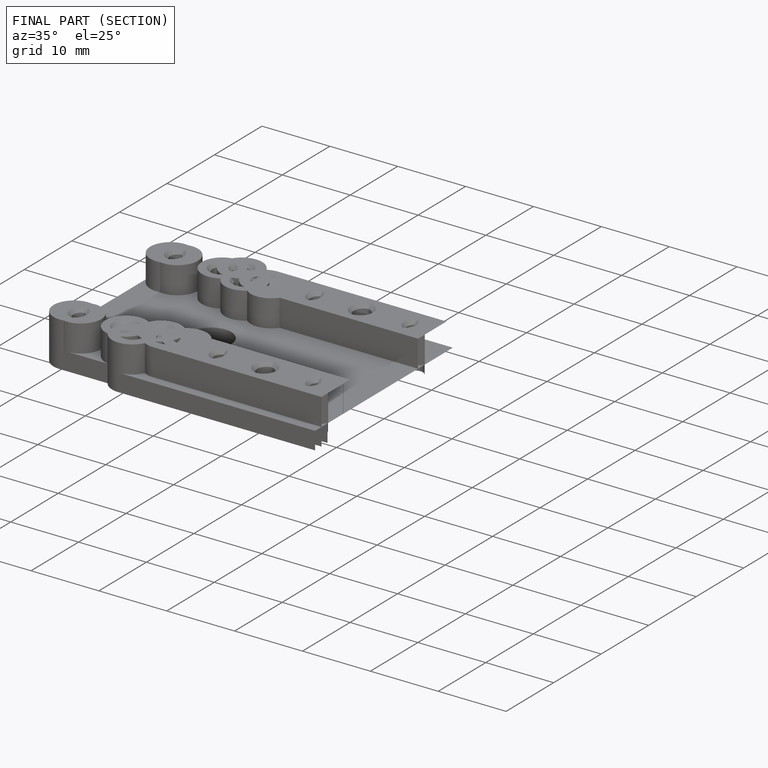
[diagram: finished part — half-section view (interior)]
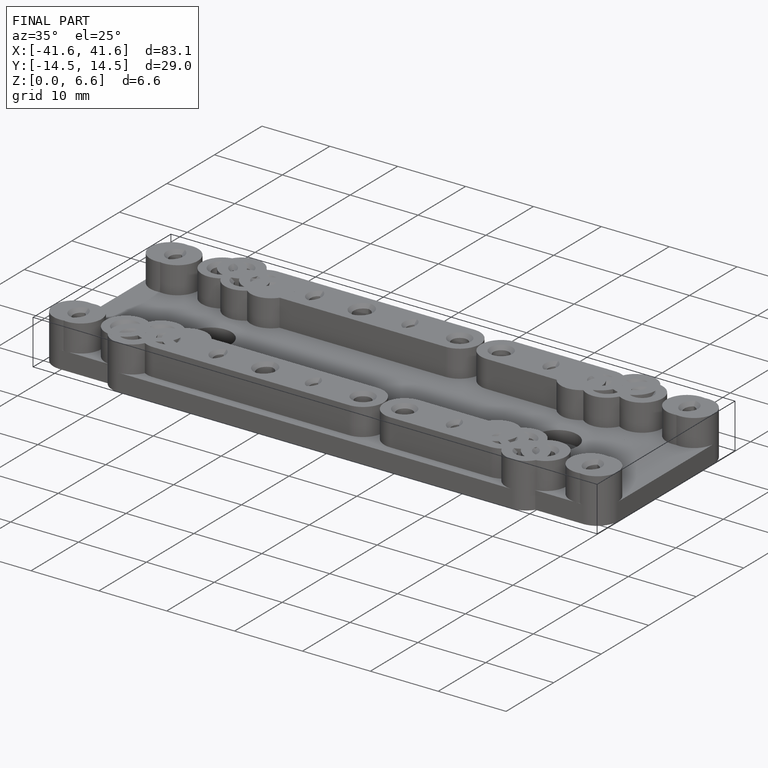
[diagram: finished part — iso view with bounding-box wireframe]
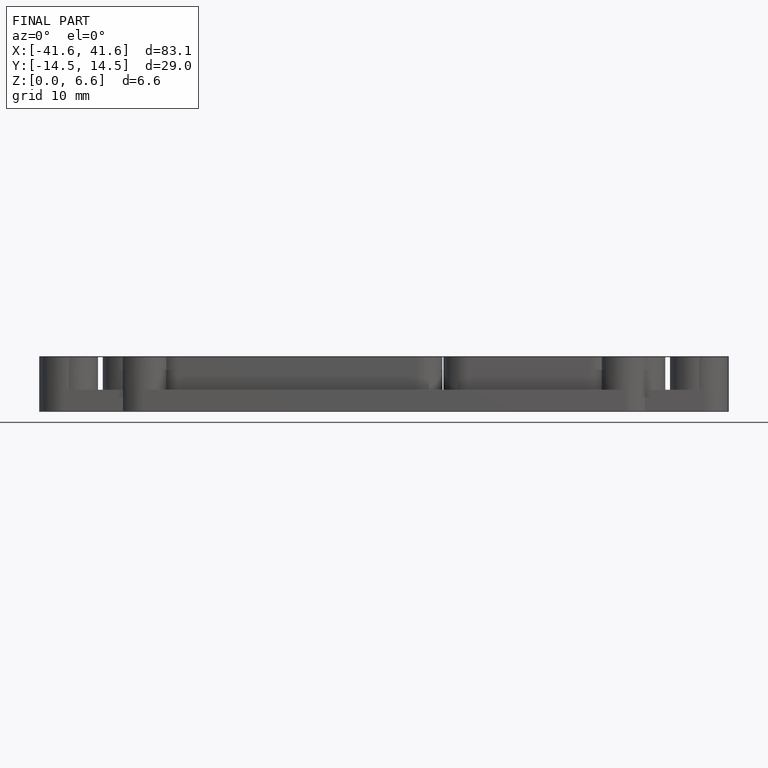
[diagram: finished part — front view with bounding-box wireframe]
